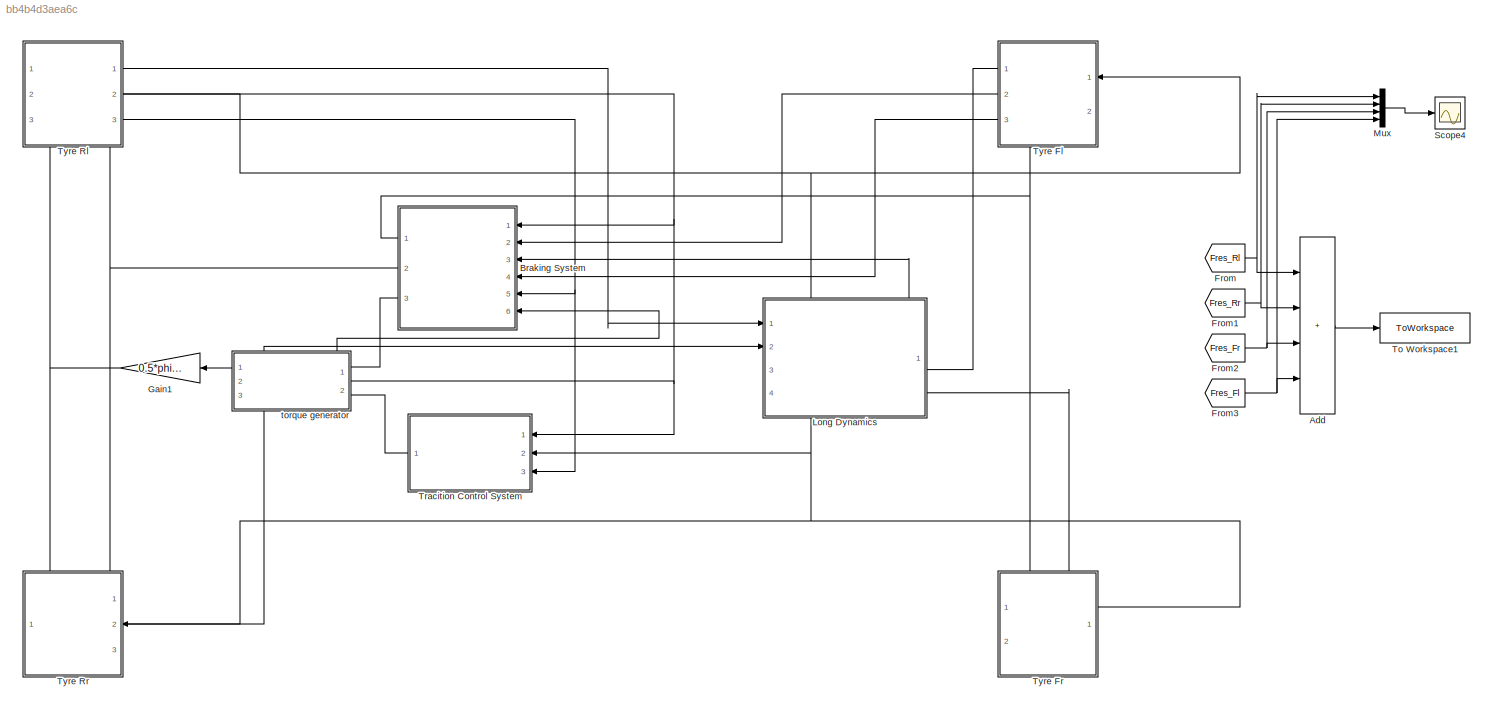
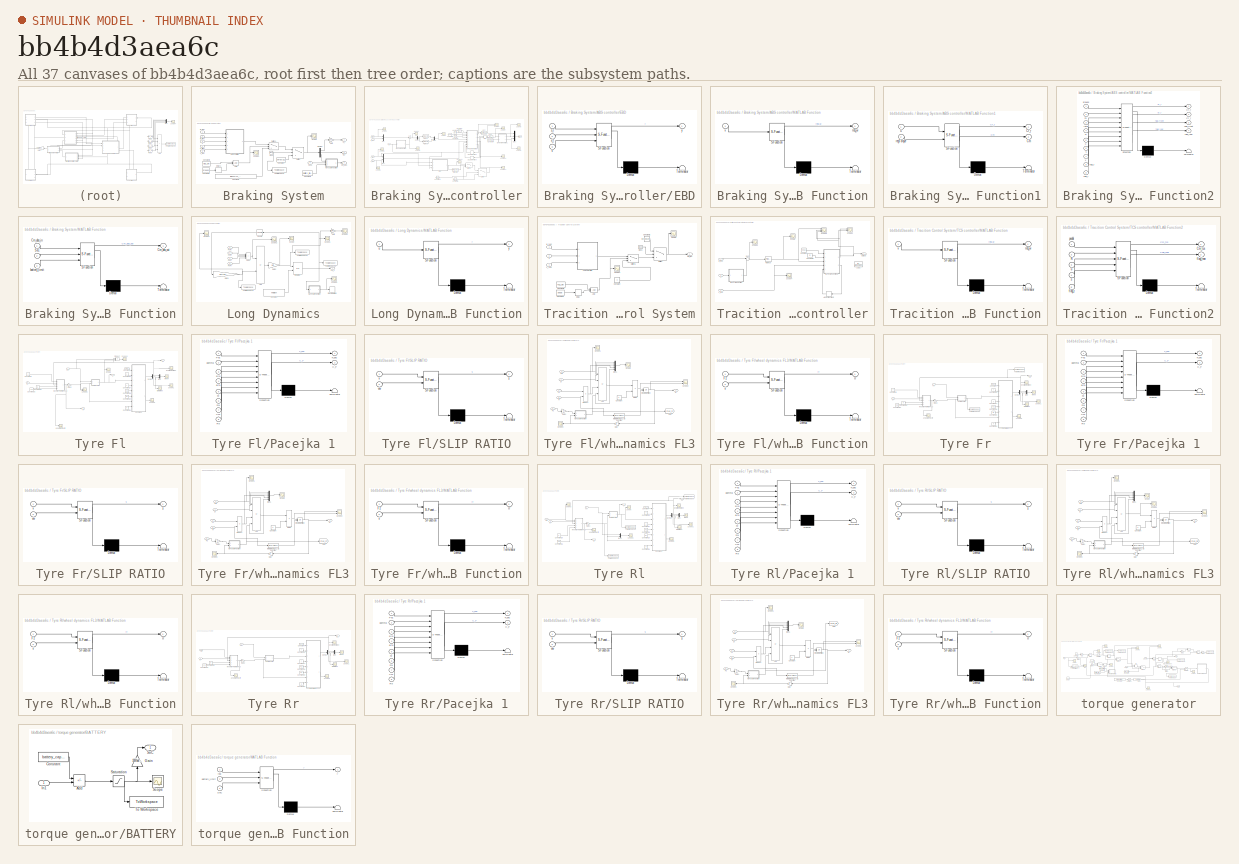
[diagram: thumbnail index - all 37 canvases of the model, root first then tree order]
MODEL slx_bb4b4d3aea6c
KIND model
CONFIG AbsTol = auto
CONFIG EnableMultiTasking = off
CONFIG FixedStep = 0.001
CONFIG MaxStep = auto
CONFIG MinStep = auto
CONFIG RelTol = 1e-3
CONFIG SampleTimeConstraint = Unconstrained
CONFIG SolverName = ode4
CONFIG StartTime = 0.0
CONFIG StopTime = sim_time
BLOCK [Sum] Add
  IconShape = rectangular
  Inputs = ++++
  Ports = [4, 1]
BLOCK [SubSystem] Braking System
  Ports = [6, 3]
  RequestExecContextInheritance = off
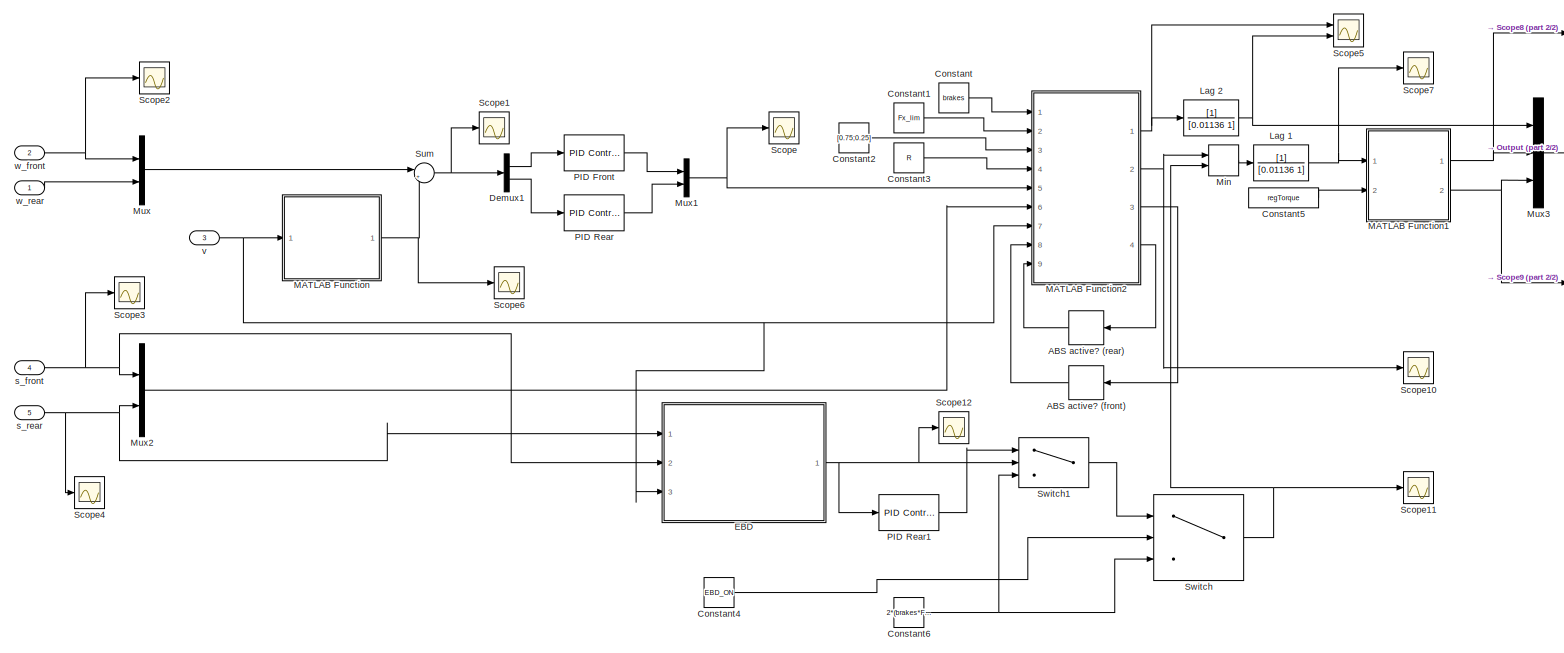
[diagram: Braking System/ABS controller - part 1/2, most of the canvas]
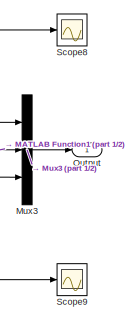
[diagram: Braking System/ABS controller - part 2/2, top right region]
BLOCK [SubSystem] Braking System/ABS controller
  Ports = [5, 1]
  RequestExecContextInheritance = off
BLOCK [TransferFcn] Braking System/ABS controller/ Lag 2
  Denominator = [0.01136 1]
  NameLocation = top
BLOCK [Delay] Braking System/ABS controller/ABS active? (front)
  DelayLength = 1
  InputPortMap = u0
  NameLocation = top
  Ports = [1, 1]
BLOCK [Delay] Braking System/ABS controller/ABS active? (rear)
  DelayLength = 1
  InputPortMap = u0
  NameLocation = top
  Ports = [1, 1]
BLOCK [Constant] Braking System/ABS controller/Constant
  Value = brakes
BLOCK [Constant] Braking System/ABS controller/Constant1
  Value = Fx_lim
BLOCK [Constant] Braking System/ABS controller/Constant2
  Value = [0.75;0.25]
BLOCK [Constant] Braking System/ABS controller/Constant3
  Value = R
BLOCK [Constant] Braking System/ABS controller/Constant4
  Value = EBD_ON
BLOCK [Constant] Braking System/ABS controller/Constant5
  Value = regTorque
BLOCK [Constant] Braking System/ABS controller/Constant6
  Value = 2*(brakes*Fx_lim*0.25*R - regTorque)
BLOCK [Demux] Braking System/ABS controller/Demux1
  Outputs = 2
  Ports = [1, 2]
BLOCK [SubSystem] Braking System/ABS controller/EBD
  ErrorFcn = Stateflow.Translate.translate
  PermitHierarchicalResolution = ExplicitOnly
  Ports = [3, 1]
  RequestExecContextInheritance = off
  SFBlockType = MATLAB Function
  TreatAsAtomicUnit = on
BLOCK [Demux] Braking System/ABS controller/EBD/ Demux 
  Outputs = 1
  Ports = [1, 1]
BLOCK [S-Function] Braking System/ABS controller/EBD/ SFunction 
  EnableBusSupport = on
  FunctionName = sf_sfun
  PortCounts = [3 2]
  Ports = [3, 2]
  SFcnIsStateOwnerBlock = off
  SFunctionDeploymentMode = off
  Tag = Stateflow S-Function 22
BLOCK [Terminator] Braking System/ABS controller/EBD/ Terminator 
BLOCK [Inport] Braking System/ABS controller/EBD/s_f
  Port = 2
BLOCK [Inport] Braking System/ABS controller/EBD/s_r
BLOCK [Inport] Braking System/ABS controller/EBD/v
  Port = 3
BLOCK [Outport] Braking System/ABS controller/EBD/y
BLOCK [TransferFcn] Braking System/ABS controller/Lag 1
  Denominator = [0.01136 1]
  NameLocation = top
BLOCK [SubSystem] Braking System/ABS controller/MATLAB Function
  ErrorFcn = Stateflow.Translate.translate
  PermitHierarchicalResolution = ExplicitOnly
  Ports = [1, 1]
  RequestExecContextInheritance = off
  SFBlockType = MATLAB Function
  TreatAsAtomicUnit = on
BLOCK [Demux] Braking System/ABS controller/MATLAB Function/ Demux 
  Outputs = 1
  Ports = [1, 1]
BLOCK [S-Function] Braking System/ABS controller/MATLAB Function/ SFunction 
  EnableBusSupport = on
  FunctionName = sf_sfun
  PortCounts = [1 2]
  Ports = [1, 2]
  SFcnIsStateOwnerBlock = off
  SFunctionDeploymentMode = off
  Tag = Stateflow S-Function 14
BLOCK [Terminator] Braking System/ABS controller/MATLAB Function/ Terminator 
BLOCK [Outport] Braking System/ABS controller/MATLAB Function/req_w
BLOCK [Inport] Braking System/ABS controller/MATLAB Function/v
BLOCK [SubSystem] Braking System/ABS controller/MATLAB Function1
  ErrorFcn = Stateflow.Translate.translate
  PermitHierarchicalResolution = ExplicitOnly
  Ports = [2, 2]
  RequestExecContextInheritance = off
  SFBlockType = MATLAB Function
  TreatAsAtomicUnit = on
BLOCK [Demux] Braking System/ABS controller/MATLAB Function1/ Demux 
  Outputs = 1
  Ports = [1, 1]
BLOCK [S-Function] Braking System/ABS controller/MATLAB Function1/ SFunction 
  EnableBusSupport = on
  FunctionName = sf_sfun
  PortCounts = [2 3]
  Ports = [2, 3]
  SFcnIsStateOwnerBlock = off
  SFunctionDeploymentMode = off
  Tag = Stateflow S-Function 16
BLOCK [Terminator] Braking System/ABS controller/MATLAB Function1/ Terminator 
BLOCK [Outport] Braking System/ABS controller/MATLAB Function1/Cf_r
BLOCK [Outport] Braking System/ABS controller/MATLAB Function1/Cm
  Port = 2
BLOCK [Inport] Braking System/ABS controller/MATLAB Function1/regTorque
  Port = 2
BLOCK [Inport] Braking System/ABS controller/MATLAB Function1/u
BLOCK [SubSystem] Braking System/ABS controller/MATLAB Function2
  ErrorFcn = Stateflow.Translate.translate
  PermitHierarchicalResolution = ExplicitOnly
  Ports = [9, 4]
  RequestExecContextInheritance = off
  SFBlockType = MATLAB Function
  TreatAsAtomicUnit = on
BLOCK [Demux] Braking System/ABS controller/MATLAB Function2/ Demux 
  Outputs = 1
  Ports = [1, 1]
BLOCK [S-Function] Braking System/ABS controller/MATLAB Function2/ SFunction 
  EnableBusSupport = on
  FunctionName = sf_sfun
  PortCounts = [9 5]
  Ports = [9, 5]
  SFcnIsStateOwnerBlock = off
  SFunctionDeploymentMode = off
  Tag = Stateflow S-Function 15
BLOCK [Terminator] Braking System/ABS controller/MATLAB Function2/ Terminator 
BLOCK [Outport] Braking System/ABS controller/MATLAB Function2/Cf_f
BLOCK [Outport] Braking System/ABS controller/MATLAB Function2/Cf_r
  Port = 2
BLOCK [Inport] Braking System/ABS controller/MATLAB Function2/Fx
  Port = 2
BLOCK [Inport] Braking System/ABS controller/MATLAB Function2/R
  Port = 4
BLOCK [Inport] Braking System/ABS controller/MATLAB Function2/brakes
BLOCK [Inport] Braking System/ABS controller/MATLAB Function2/flag_f
  Port = 8
BLOCK [Outport] Braking System/ABS controller/MATLAB Function2/flag_front
  Port = 3
BLOCK [Inport] Braking System/ABS controller/MATLAB Function2/flag_r
  Port = 9
BLOCK [Outport] Braking System/ABS controller/MATLAB Function2/flag_rear
  Port = 4
BLOCK [Inport] Braking System/ABS controller/MATLAB Function2/ratio
  Port = 3
BLOCK [Inport] Braking System/ABS controller/MATLAB Function2/s
  Port = 6
BLOCK [Inport] Braking System/ABS controller/MATLAB Function2/u
  Port = 5
BLOCK [Inport] Braking System/ABS controller/MATLAB Function2/v
  Port = 7
BLOCK [MinMax] Braking System/ABS controller/Min
  Inputs = 2
  Ports = [2, 1]
BLOCK [Mux] Braking System/ABS controller/Mux
  DisplayOption = bar
  Inputs = 2
  Ports = [2, 1]
BLOCK [Mux] Braking System/ABS controller/Mux1
  DisplayOption = bar
  Inputs = 2
  Ports = [2, 1]
BLOCK [Mux] Braking System/ABS controller/Mux2
  DisplayOption = bar
  Inputs = 2
  Ports = [2, 1]
BLOCK [Mux] Braking System/ABS controller/Mux3
  DisplayOption = bar
  Inputs = 3
  Ports = [3, 1]
BLOCK [Outport] Braking System/ABS controller/Output
BLOCK [Reference] Braking System/ABS controller/PID Front  REF=pid_lib/PID Controller
  NameLocation = top
  Ports = [1, 1]
  SourceBlock = pid_lib/PID Controller
  SourceProductBaseCode = SL
  SourceType = PID 1dof
BLOCK [Reference] Braking System/ABS controller/PID Rear  REF=pid_lib/PID Controller
  NameLocation = top
  Ports = [1, 1]
  SourceBlock = pid_lib/PID Controller
  SourceProductBaseCode = SL
  SourceType = PID 1dof
BLOCK [Reference] Braking System/ABS controller/PID Rear1  REF=pid_lib/PID Controller
  NameLocation = top
  Ports = [1, 1]
  SourceBlock = pid_lib/PID Controller
  SourceProductBaseCode = SL
  SourceType = PID 1dof
BLOCK [Scope] Braking System/ABS controller/Scope
  Floating = off
  NumInputPorts = 1
  Ports = [1]
  ScopeSpecificationString = Simulink.scopes.TimeScopeBlockCfg('CurrentConfiguration', extmgr.ConfigurationSet(extmgr.Configuration('Core','General UI',true),extmgr.Configuration('Core','Source UI',true),extmgr.Configuration('Sources','WiredSimulink',true,'DataLoggingVariableName','ScopeData1'),extmgr.Configuration('Visuals','Time Domain',true,'SerializedDisplays',{struct('MinYLimReal','-166.41433','MaxYLimReal','1497.729','Y...<+1503ch>
BLOCK [Scope] Braking System/ABS controller/Scope1
  Floating = off
  NumInputPorts = 1
  Ports = [1]
  ScopeSpecificationString = Simulink.scopes.TimeScopeBlockCfg('CurrentConfiguration', extmgr.ConfigurationSet(extmgr.Configuration('Core','General UI',true),extmgr.Configuration('Core','Source UI',true),extmgr.Configuration('Sources','WiredSimulink',true,'DataLoggingVariableName','ScopeData4'),extmgr.Configuration('Visuals','Time Domain',true,'SerializedDisplays',{struct('MinYLimReal','-79.86769','MaxYLimReal','29.11014','YL...<+1498ch>
BLOCK [Scope] Braking System/ABS controller/Scope10
  Floating = off
  NumInputPorts = 1
  Ports = [1]
  ScopeSpecificationString = Simulink.scopes.TimeScopeBlockCfg('CurrentConfiguration', extmgr.ConfigurationSet(extmgr.Configuration('Core','General UI',true),extmgr.Configuration('Core','Source UI',true),extmgr.Configuration('Sources','WiredSimulink',true,'DataLoggingVariableName','ScopeData2'),extmgr.Configuration('Visuals','Time Domain',true,'SerializedDisplays',{struct('MinYLimReal','3740.192','MaxYLimReal','5740.192','YLa...<+1459ch>
BLOCK [Scope] Braking System/ABS controller/Scope11
  Floating = off
  NumInputPorts = 1
  Ports = [1]
  ScopeSpecificationString = Simulink.scopes.TimeScopeBlockCfg('CurrentConfiguration', extmgr.ConfigurationSet(extmgr.Configuration('Core','General UI',true),extmgr.Configuration('Core','Source UI',true),extmgr.Configuration('Sources','WiredSimulink',true,'DataLoggingVariableName','ScopeData3'),extmgr.Configuration('Visuals','Time Domain',true,'SerializedDisplays',{struct('MinYLimReal','-1189.61359','MaxYLimReal','10797.15984...<+1462ch>
BLOCK [Scope] Braking System/ABS controller/Scope12
  Floating = off
  NumInputPorts = 1
  Ports = [1]
  ScopeSpecificationString = Simulink.scopes.TimeScopeBlockCfg('CurrentConfiguration', extmgr.ConfigurationSet(extmgr.Configuration('Core','General UI',true),extmgr.Configuration('Core','Source UI',true),extmgr.Configuration('Sources','WiredSimulink',true,'DataLoggingVariableName','ScopeData1'),extmgr.Configuration('Visuals','Time Domain',true,'SerializedDisplays',{struct('MinYLimReal','-6.85409','MaxYLimReal','132.3563','YLa...<+1445ch>
BLOCK [Scope] Braking System/ABS controller/Scope2
  Floating = off
  NumInputPorts = 1
  Ports = [1]
  ScopeSpecificationString = Simulink.scopes.TimeScopeBlockCfg('CurrentConfiguration', extmgr.ConfigurationSet(extmgr.Configuration('Core','General UI',true),extmgr.Configuration('Core','Source UI',true),extmgr.Configuration('Sources','WiredSimulink',true,'DataLoggingVariableName','ScopeData5'),extmgr.Configuration('Visuals','Time Domain',true,'SerializedDisplays',{struct('MinYLimReal','-20.72303','MaxYLimReal','186.50725','Y...<+1434ch>
BLOCK [Scope] Braking System/ABS controller/Scope3
  Floating = off
  NumInputPorts = 1
  Ports = [1]
  ScopeSpecificationString = Simulink.scopes.TimeScopeBlockCfg('CurrentConfiguration', extmgr.ConfigurationSet(extmgr.Configuration('Core','General UI',true),extmgr.Configuration('Core','Source UI',true),extmgr.Configuration('Sources','WiredSimulink',true,'DataLoggingVariableName','ScopeData6'),extmgr.Configuration('Visuals','Time Domain',true,'SerializedDisplays',{struct('MinYLimReal','-1.14665','MaxYLimReal','0.31988','YLab...<+1410ch>
BLOCK [Scope] Braking System/ABS controller/Scope4
  Floating = off
  NumInputPorts = 1
  Ports = [1]
  ScopeSpecificationString = Simulink.scopes.TimeScopeBlockCfg('CurrentConfiguration', extmgr.ConfigurationSet(extmgr.Configuration('Core','General UI',true),extmgr.Configuration('Core','Source UI',true),extmgr.Configuration('Sources','WiredSimulink',true,'DataLoggingVariableName','ScopeData7'),extmgr.Configuration('Visuals','Time Domain',true,'SerializedDisplays',{struct('MinYLimReal','-16.62651','MaxYLimReal','139.63859','Y...<+1400ch>
BLOCK [Scope] Braking System/ABS controller/Scope5
  Floating = off
  NumInputPorts = 2
  Ports = [2]
  ScopeSpecificationString = Simulink.scopes.TimeScopeBlockCfg('CurrentConfiguration', extmgr.ConfigurationSet(extmgr.Configuration('Core','General UI',true),extmgr.Configuration('Core','Source UI',true),extmgr.Configuration('Sources','WiredSimulink',true,'DataLoggingVariableName','ScopeData2'),extmgr.Configuration('Visuals','Time Domain',true,'SerializedDisplays',{struct('MinYLimReal','3517.55339','MaxYLimReal','3570.41065',...<+1526ch>
BLOCK [Scope] Braking System/ABS controller/Scope6
  Floating = off
  NumInputPorts = 1
  Ports = [1]
  ScopeSpecificationString = Simulink.scopes.TimeScopeBlockCfg('CurrentConfiguration', extmgr.ConfigurationSet(extmgr.Configuration('Core','General UI',true),extmgr.Configuration('Core','Source UI',true),extmgr.Configuration('Sources','WiredSimulink',true,'DataLoggingVariableName','ScopeData3'),extmgr.Configuration('Visuals','Time Domain',true,'SerializedDisplays',{struct('MinYLimReal','-8.26361','MaxYLimReal','75.47711','YLa...<+1409ch>
BLOCK [Scope] Braking System/ABS controller/Scope7
  Floating = off
  NumInputPorts = 1
  Ports = [1]
  ScopeSpecificationString = Simulink.scopes.TimeScopeBlockCfg('CurrentConfiguration', extmgr.ConfigurationSet(extmgr.Configuration('Core','General UI',true),extmgr.Configuration('Core','Source UI',true),extmgr.Configuration('Sources','WiredSimulink',true,'DataLoggingVariableName','ScopeData2'),extmgr.Configuration('Visuals','Time Domain',true,'SerializedDisplays',{struct('MinYLimReal','-148.131','MaxYLimReal','1333.179','YLa...<+1440ch>
BLOCK [Scope] Braking System/ABS controller/Scope8
  Floating = off
  NumInputPorts = 1
  Ports = [1]
  ScopeSpecificationString = Simulink.scopes.TimeScopeBlockCfg('CurrentConfiguration', extmgr.ConfigurationSet(extmgr.Configuration('Core','General UI',true),extmgr.Configuration('Core','Source UI',true),extmgr.Configuration('Sources','WiredSimulink',true,'DataLoggingVariableName','ScopeData3'),extmgr.Configuration('Visuals','Time Domain',true,'SerializedDisplays',{struct('MinYLimReal','-292.57142','MaxYLimReal','2633.1428','...<+1447ch>
BLOCK [Scope] Braking System/ABS controller/Scope9
  Floating = off
  NumInputPorts = 1
  Ports = [1]
  ScopeSpecificationString = Simulink.scopes.TimeScopeBlockCfg('CurrentConfiguration', extmgr.ConfigurationSet(extmgr.Configuration('Core','General UI',true),extmgr.Configuration('Core','Source UI',true),extmgr.Configuration('Sources','WiredSimulink',true,'DataLoggingVariableName','ScopeData4'),extmgr.Configuration('Visuals','Time Domain',true,'SerializedDisplays',{struct('MinYLimReal','-331.32137','MaxYLimReal','36.81349','Y...<+1463ch>
BLOCK [Sum] Braking System/ABS controller/Sum
  Inputs = |+-
  Ports = [2, 1]
BLOCK [Switch] Braking System/ABS controller/Switch
  Criteria = u2 > Threshold
  InputSameDT = off
  SaturateOnIntegerOverflow = off
BLOCK [Switch] Braking System/ABS controller/Switch1
  Criteria = u2 > Threshold
  InputSameDT = off
  SaturateOnIntegerOverflow = off
BLOCK [Inport] Braking System/ABS controller/s_front
  Port = 4
BLOCK [Inport] Braking System/ABS controller/s_rear
  Port = 5
BLOCK [Inport] Braking System/ABS controller/v
  Port = 3
BLOCK [Inport] Braking System/ABS controller/w_front
  Port = 2
BLOCK [Inport] Braking System/ABS controller/w_rear
BLOCK [Logic] Braking System/AND
  AllPortsSameDT = off
  IconShape = distinctive
  OutDataTypeStr = boolean
  Ports = [2, 1]
BLOCK [Outport] Braking System/Cf_f
BLOCK [Outport] Braking System/Cf_r
  Port = 2
BLOCK [Clock] Braking System/Clock
BLOCK [Outport] Braking System/Cm_abs
  Port = 3
BLOCK [Constant] Braking System/Constant
  Value = zeros(3,1)
BLOCK [Constant] Braking System/Constant1
  Value = [brakes*Fx_lim*0.75*R brakes*Fx_lim*0.25*R 0]
BLOCK [Constant] Braking System/Constant2
  Value = ABS_ON
BLOCK [Constant] Braking System/Constant3
  Value = brakes
BLOCK [Constant] Braking System/Constant4
  Value = battery_limit
BLOCK [Delay] Braking System/Delay1
  DelayLength = 20
  InputPortMap = u0
  Ports = [1, 1]
BLOCK [Demux] Braking System/Demux
  Outputs = 3
  Ports = [1, 3]
BLOCK [Gain] Braking System/Gain
  Gain = 0.5
BLOCK [SubSystem] Braking System/MATLAB Function
  ErrorFcn = Stateflow.Translate.translate
  PermitHierarchicalResolution = ExplicitOnly
  Ports = [3, 1]
  RequestExecContextInheritance = off
  SFBlockType = MATLAB Function
  TreatAsAtomicUnit = on
BLOCK [Demux] Braking System/MATLAB Function/ Demux 
  Outputs = 1
  Ports = [1, 1]
BLOCK [S-Function] Braking System/MATLAB Function/ SFunction 
  EnableBusSupport = on
  FunctionName = sf_sfun
  PortCounts = [3 2]
  Ports = [3, 2]
  SFcnIsStateOwnerBlock = off
  SFunctionDeploymentMode = off
  Tag = Stateflow S-Function 20
BLOCK [Terminator] Braking System/MATLAB Function/ Terminator 
BLOCK [Inport] Braking System/MATLAB Function/Cm_abs_in
BLOCK [Outport] Braking System/MATLAB Function/Cm_abs_out
BLOCK [Inport] Braking System/MATLAB Function/SoC
  Port = 2
BLOCK [Inport] Braking System/MATLAB Function/battery_limit
  Port = 3
BLOCK [Scope] Braking System/Scope
  Floating = off
  NumInputPorts = 1
  Ports = [1]
  ScopeSpecificationString = Simulink.scopes.TimeScopeBlockCfg('CurrentConfiguration', extmgr.ConfigurationSet(extmgr.Configuration('Core','General UI',true,'FigureColor',[0 0 0]),extmgr.Configuration('Core','Source UI',true),extmgr.Configuration('Sources','WiredSimulink',true,'DataLoggingVariableName','ScopeData2'),extmgr.Configuration('Visuals','Time Domain',true,'SerializedDisplays',{struct('MinYLimReal','-888.786','MaxYLi...<+1472ch>
BLOCK [Scope] Braking System/Scope1
  Floating = off
  NumInputPorts = 1
  Ports = [1]
  ScopeSpecificationString = Simulink.scopes.TimeScopeBlockCfg('CurrentConfiguration', extmgr.ConfigurationSet(extmgr.Configuration('Core','General UI',true),extmgr.Configuration('Core','Source UI',true),extmgr.Configuration('Sources','WiredSimulink',true,'DataLoggingVariableName','ScopeData1'),extmgr.Configuration('Visuals','Time Domain',true,'SerializedDisplays',{struct('MinYLimReal','-1.00000','MaxYLimReal','1.00000','YLab...<+1503ch>
BLOCK [Inport] Braking System/SoC1
  Port = 6
BLOCK [Switch] Braking System/Switch
  Criteria = u2 > Threshold
  InputSameDT = off
  SaturateOnIntegerOverflow = off
  Threshold = brake_start
BLOCK [Switch] Braking System/Switch1
  Criteria = u2 > Threshold
  InputSameDT = off
  SaturateOnIntegerOverflow = off
BLOCK [ToWorkspace] Braking System/To Workspace
  FixptAsFi = on
  MaxDataPoints = inf
  Ports = [1]
  SampleTime = -1
  VariableName = t
BLOCK [Inport] Braking System/s_front
  Port = 4
BLOCK [Inport] Braking System/s_rear
  Port = 5
BLOCK [Inport] Braking System/v
  Port = 3
BLOCK [Inport] Braking System/w_front
  Port = 2
BLOCK [Inport] Braking System/w_rear
BLOCK [From] From
  GotoTag = Fres_Rl
  TagVisibility = global
BLOCK [From] From1
  GotoTag = Fres_Rr
  TagVisibility = global
BLOCK [From] From2
  GotoTag = Fres_Fr
  TagVisibility = global
BLOCK [From] From3
  GotoTag = Fres_Fl
  TagVisibility = global
BLOCK [Gain] Gain1
  Gain = 0.5*phi*Gr
BLOCK [SubSystem] Long Dynamics
  PortSchema = {"entries":[{"content":{"sides":[{"content":{"connectorIds":["In1","Out1","In2"]},"type":"ConnectorPlacement.EquallySpacedRectSide","uuid":"f4bfbc8e-e09b-460b-b847-06647d23fd6c"},{"content":{"connectorIds":["In3","In4"],"side":"RIGHT"},"type":"ConnectorPlacement.EquallySpacedRectSide","uuid":"843119d8-e9e9-4b71-b659-44edd5e92d7e"},{"content":{"connectorIds":[],"side":"TOP"},"type":"ConnectorPlacem...<+258ch>
  Ports = [4, 1]
  RequestExecContextInheritance = off
BLOCK [Sum] Long Dynamics/Add
  IconShape = rectangular
  Inputs = +-
  Ports = [2, 1]
BLOCK [Sum] Long Dynamics/Add1
  IconShape = rectangular
  Inputs = ++++
  Ports = [4, 1]
BLOCK [Constant] Long Dynamics/Constant
  Value = velstart
BLOCK [Inport] Long Dynamics/FxFl
  Port = 3
BLOCK [Inport] Long Dynamics/FxFr
  Port = 4
BLOCK [Inport] Long Dynamics/FxRl
BLOCK [Inport] Long Dynamics/FxRr
  Port = 2
BLOCK [Gain] Long Dynamics/Gain
  Gain = m*h/L
BLOCK [Gain] Long Dynamics/Gain1
  Gain = 0.5*rho*Cx*Af
BLOCK [Gain] Long Dynamics/Gain2
  Gain = 1/m
BLOCK [Integrator] Long Dynamics/Integrator
  InitialConditionSource = external
  LimitOutput = on
  LowerSaturationLimit = 0
  Ports = [2, 1]
BLOCK [SubSystem] Long Dynamics/MATLAB Function
  ErrorFcn = Stateflow.Translate.translate
  PermitHierarchicalResolution = ExplicitOnly
  Ports = [1, 1]
  RequestExecContextInheritance = off
  SFBlockType = MATLAB Function
  TreatAsAtomicUnit = on
BLOCK [Demux] Long Dynamics/MATLAB Function/ Demux 
  Outputs = 1
  Ports = [1, 1]
BLOCK [S-Function] Long Dynamics/MATLAB Function/ SFunction 
  EnableBusSupport = on
  FunctionName = sf_sfun
  PortCounts = [1 2]
  Ports = [1, 2]
  SFcnIsStateOwnerBlock = off
  SFunctionDeploymentMode = off
  Tag = Stateflow S-Function 13
BLOCK [Terminator] Long Dynamics/MATLAB Function/ Terminator 
BLOCK [Inport] Long Dynamics/MATLAB Function/u
BLOCK [Outport] Long Dynamics/MATLAB Function/y
BLOCK [Scope] Long Dynamics/Scope
  Floating = off
  NumInputPorts = 1
  Ports = [1]
  ScopeSpecificationString = Simulink.scopes.TimeScopeBlockCfg('CurrentConfiguration', extmgr.ConfigurationSet(extmgr.Configuration('Core','General UI',true),extmgr.Configuration('Core','Source UI',true),extmgr.Configuration('Sources','WiredSimulink',true),extmgr.Configuration('Visuals','Time Domain',true,'SerializedDisplays',{struct('MinYLimReal','-1.40316','MaxYLimReal','11.31553','YLabelReal','','MinYLimMag','0.00000','Max...<+1400ch>
BLOCK [Scope] Long Dynamics/Scope1
  Floating = off
  NumInputPorts = 1
  Ports = [1]
  ScopeSpecificationString = Simulink.scopes.TimeScopeBlockCfg('CurrentConfiguration', extmgr.ConfigurationSet(extmgr.Configuration('Core','General UI',true),extmgr.Configuration('Core','Source UI',true),extmgr.Configuration('Sources','WiredSimulink',true,'DataLoggingVariableName','ScopeData6'),extmgr.Configuration('Visuals','Time Domain',true,'SerializedDisplays',{struct('MinYLimReal','-5.00928','MaxYLimReal','50.01842','YLa...<+1444ch>
BLOCK [Scope] Long Dynamics/Scope2
  Floating = off
  NumInputPorts = 1
  Ports = [1]
  ScopeSpecificationString = Simulink.scopes.TimeScopeBlockCfg('CurrentConfiguration', extmgr.ConfigurationSet(extmgr.Configuration('Core','General UI',true),extmgr.Configuration('Core','Source UI',true),extmgr.Configuration('Sources','WiredSimulink',true,'DataLoggingVariableName','ScopeData3'),extmgr.Configuration('Visuals','Time Domain',true,'SerializedDisplays',{struct('MinYLimReal','-18686.28921','MaxYLimReal','8851.96449...<+1470ch>
BLOCK [Scope] Long Dynamics/Scope3
  Floating = off
  NumInputPorts = 1
  Ports = [1]
  ScopeSpecificationString = Simulink.scopes.TimeScopeBlockCfg('CurrentConfiguration', extmgr.ConfigurationSet(extmgr.Configuration('Core','General UI',true),extmgr.Configuration('Core','Source UI',true),extmgr.Configuration('Sources','WiredSimulink',true,'DataLoggingVariableName','ScopeData1'),extmgr.Configuration('Visuals','Time Domain',true,'SerializedDisplays',{struct('MinYLimReal','-1.00000','MaxYLimReal','1.00000','YLab...<+1426ch>
BLOCK [Scope] Long Dynamics/Scope4
  Floating = off
  NumInputPorts = 1
  Ports = [1]
  ScopeSpecificationString = Simulink.scopes.TimeScopeBlockCfg('CurrentConfiguration', extmgr.ConfigurationSet(extmgr.Configuration('Core','General UI',true),extmgr.Configuration('Core','Source UI',true),extmgr.Configuration('Sources','WiredSimulink',true,'DataLoggingVariableName','ScopeData1'),extmgr.Configuration('Visuals','Time Domain',true,'SerializedDisplays',{struct('MinYLimReal','-64.40313','MaxYLimReal','579.62821','Y...<+1448ch>
BLOCK [Scope] Long Dynamics/Scope5
  Floating = off
  NumInputPorts = 1
  Ports = [1]
  ScopeSpecificationString = Simulink.scopes.TimeScopeBlockCfg('CurrentConfiguration', extmgr.ConfigurationSet(extmgr.Configuration('Core','General UI',true),extmgr.Configuration('Core','Source UI',true),extmgr.Configuration('Sources','WiredSimulink',true,'DataLoggingVariableName','ScopeData1'),extmgr.Configuration('Visuals','Time Domain',true,'SerializedDisplays',{struct('MinYLimReal','-4687.18969','MaxYLimReal','2841.88291'...<+1410ch>
BLOCK [Math] Long Dynamics/Square
  NameLocation = top
  Operator = square
  Ports = [1, 1]
BLOCK [Stop] Long Dynamics/Stop Simulation
BLOCK [ToWorkspace] Long Dynamics/To Workspace1
  FixptAsFi = on
  MaxDataPoints = inf
  Ports = [1]
  SampleTime = -1
  VariableName = aerodynamic_drag
BLOCK [ToWorkspace] Long Dynamics/To Workspace2
  FixptAsFi = on
  MaxDataPoints = inf
  Ports = [1]
  SampleTime = -1
  VariableName = a
BLOCK [ToWorkspace] Long Dynamics/To Workspace3
  FixptAsFi = on
  MaxDataPoints = inf
  Ports = [1]
  SampleTime = -1
  VariableName = vel
BLOCK [Outport] Long Dynamics/vel_x
BLOCK [Mux] Mux
  DisplayOption = bar
  Ports = [4, 1]
BLOCK [Scope] Scope4
  Floating = off
  NumInputPorts = 1
  Ports = [1]
  ScopeSpecificationString = Simulink.scopes.TimeScopeBlockCfg('CurrentConfiguration', extmgr.ConfigurationSet(extmgr.Configuration('Core','General UI',true),extmgr.Configuration('Core','Source UI',true),extmgr.Configuration('Sources','WiredSimulink',true,'DataLoggingVariableName','ScopeData4'),extmgr.Configuration('Visuals','Time Domain',true,'SerializedDisplays',{struct('MinYLimReal','9.68125','MaxYLimReal','52.37258','YLab...<+1430ch>
BLOCK [ToWorkspace] To Workspace1
  FixptAsFi = on
  MaxDataPoints = inf
  Ports = [1]
  SampleTime = -1
  VariableName = rolling_resistance
BLOCK [SubSystem] Tracition Control System
  Ports = [3, 1]
  RequestExecContextInheritance = off
BLOCK [Logic] Tracition Control System/AND
  AllPortsSameDT = off
  IconShape = distinctive
  OutDataTypeStr = boolean
  Ports = [2, 1]
BLOCK [Clock] Tracition Control System/Clock
BLOCK [Outport] Tracition Control System/Cm_tcs
  NameLocation = top
BLOCK [Constant] Tracition Control System/Constant
  Value = 0
BLOCK [Constant] Tracition Control System/Constant2
  Value = regTorque*0.5*phi*Gr
BLOCK [Constant] Tracition Control System/Constant3
  Value = TCS_ON
BLOCK [Constant] Tracition Control System/Constant4
  Value = pedal
BLOCK [Delay] Tracition Control System/Delay
  DelayLength = 20
  InputPortMap = u0
  Ports = [1, 1]
BLOCK [Scope] Tracition Control System/Scope
  Floating = off
  NumInputPorts = 1
  Ports = [1]
  ScopeSpecificationString = Simulink.scopes.TimeScopeBlockCfg('CurrentConfiguration', extmgr.ConfigurationSet(extmgr.Configuration('Core','General UI',true),extmgr.Configuration('Core','Source UI',true),extmgr.Configuration('Sources','WiredSimulink',true,'DataLoggingVariableName','ScopeData2'),extmgr.Configuration('Visuals','Time Domain',true,'SerializedDisplays',{struct('MinYLimReal','-38.75','MaxYLimReal','348.75','YLabelR...<+1496ch>
BLOCK [Scope] Tracition Control System/Scope1
  Floating = off
  NumInputPorts = 1
  Ports = [1]
  ScopeSpecificationString = Simulink.scopes.TimeScopeBlockCfg('CurrentConfiguration', extmgr.ConfigurationSet(extmgr.Configuration('Core','General UI',true),extmgr.Configuration('Core','Source UI',true),extmgr.Configuration('Sources','WiredSimulink',true,'DataLoggingVariableName','ScopeData1'),extmgr.Configuration('Visuals','Time Domain',true,'SerializedDisplays',{struct('MinYLimReal','0.9','MaxYLimReal','1.1','YLabelReal','...<+1388ch>
BLOCK [Switch] Tracition Control System/Switch
  Criteria = u2 > Threshold
  InputSameDT = off
  SaturateOnIntegerOverflow = off
  Threshold = sim_time
BLOCK [Switch] Tracition Control System/Switch1
  Criteria = u2 > Threshold
  InputSameDT = off
  SaturateOnIntegerOverflow = off
BLOCK [SubSystem] Tracition Control System/TCS controller
  Ports = [3, 1]
  RequestExecContextInheritance = off
BLOCK [Delay] Tracition Control System/TCS controller/ABS active? (rear)
  DelayLength = 1
  InputPortMap = u0
  NameLocation = top
  Ports = [1, 1]
BLOCK [Constant] Tracition Control System/TCS controller/Constant
  Value = pedal
BLOCK [Constant] Tracition Control System/TCS controller/Constant3
  Value = R
BLOCK [TransferFcn] Tracition Control System/TCS controller/Lag 1
  Denominator = [0.01136 1]
  NameLocation = top
BLOCK [SubSystem] Tracition Control System/TCS controller/MATLAB Function
  ErrorFcn = Stateflow.Translate.translate
  PermitHierarchicalResolution = ExplicitOnly
  Ports = [1, 1]
  RequestExecContextInheritance = off
  SFBlockType = MATLAB Function
  TreatAsAtomicUnit = on
BLOCK [Demux] Tracition Control System/TCS controller/MATLAB Function/ Demux 
  Outputs = 1
  Ports = [1, 1]
BLOCK [S-Function] Tracition Control System/TCS controller/MATLAB Function/ SFunction 
  EnableBusSupport = on
  FunctionName = sf_sfun
  PortCounts = [1 2]
  Ports = [1, 2]
  SFcnIsStateOwnerBlock = off
  SFunctionDeploymentMode = off
  Tag = Stateflow S-Function 17
BLOCK [Terminator] Tracition Control System/TCS controller/MATLAB Function/ Terminator 
BLOCK [Outport] Tracition Control System/TCS controller/MATLAB Function/req_w
BLOCK [Inport] Tracition Control System/TCS controller/MATLAB Function/v
BLOCK [SubSystem] Tracition Control System/TCS controller/MATLAB Function2
  ErrorFcn = Stateflow.Translate.translate
  PermitHierarchicalResolution = ExplicitOnly
  Ports = [5, 2]
  RequestExecContextInheritance = off
  SFBlockType = MATLAB Function
  TreatAsAtomicUnit = on
BLOCK [Demux] Tracition Control System/TCS controller/MATLAB Function2/ Demux 
  Outputs = 1
  Ports = [1, 1]
BLOCK [S-Function] Tracition Control System/TCS controller/MATLAB Function2/ SFunction 
  EnableBusSupport = on
  FunctionName = sf_sfun
  PortCounts = [5 3]
  Ports = [5, 3]
  SFcnIsStateOwnerBlock = off
  SFunctionDeploymentMode = off
  Tag = Stateflow S-Function 19
BLOCK [Terminator] Tracition Control System/TCS controller/MATLAB Function2/ Terminator 
BLOCK [Outport] Tracition Control System/TCS controller/MATLAB Function2/Cm_tcs
BLOCK [Inport] Tracition Control System/TCS controller/MATLAB Function2/R
  Port = 2
BLOCK [Inport] Tracition Control System/TCS controller/MATLAB Function2/flag_r
  Port = 5
BLOCK [Outport] Tracition Control System/TCS controller/MATLAB Function2/flag_rear
  Port = 2
BLOCK [Inport] Tracition Control System/TCS controller/MATLAB Function2/pedal
BLOCK [Inport] Tracition Control System/TCS controller/MATLAB Function2/s
  Port = 4
BLOCK [Inport] Tracition Control System/TCS controller/MATLAB Function2/u
  Port = 3
BLOCK [Outport] Tracition Control System/TCS controller/Output
BLOCK [Reference] Tracition Control System/TCS controller/PID Rear  REF=pid_lib/PID Controller
  NameLocation = top
  Ports = [1, 1]
  SourceBlock = pid_lib/PID Controller
  SourceProductBaseCode = SL
  SourceType = PID 1dof
BLOCK [Scope] Tracition Control System/TCS controller/Scope
  Floating = off
  NumInputPorts = 1
  Ports = [1]
  ScopeSpecificationString = Simulink.scopes.TimeScopeBlockCfg('CurrentConfiguration', extmgr.ConfigurationSet(extmgr.Configuration('Core','General UI',true),extmgr.Configuration('Core','Source UI',true),extmgr.Configuration('Sources','WiredSimulink',true,'DataLoggingVariableName','ScopeData1'),extmgr.Configuration('Visuals','Time Domain',true,'SerializedDisplays',{struct('MinYLimReal','-1.00000','MaxYLimReal','1.00000','YLab...<+1438ch>
BLOCK [Scope] Tracition Control System/TCS controller/Scope1
  Floating = off
  NumInputPorts = 1
  Ports = [1]
  ScopeSpecificationString = Simulink.scopes.TimeScopeBlockCfg('CurrentConfiguration', extmgr.ConfigurationSet(extmgr.Configuration('Core','General UI',true),extmgr.Configuration('Core','Source UI',true),extmgr.Configuration('Sources','WiredSimulink',true,'DataLoggingVariableName','ScopeData4'),extmgr.Configuration('Visuals','Time Domain',true,'SerializedDisplays',{struct('MinYLimReal','-23.36615','MaxYLimReal','91.89168','YL...<+1484ch>
BLOCK [Scope] Tracition Control System/TCS controller/Scope2
  Floating = off
  NumInputPorts = 2
  Ports = [2]
  ScopeSpecificationString = Simulink.scopes.TimeScopeBlockCfg('CurrentConfiguration', extmgr.ConfigurationSet(extmgr.Configuration('Core','General UI',true),extmgr.Configuration('Core','Source UI',true),extmgr.Configuration('Sources','WiredSimulink',true,'DataLoggingVariableName','ScopeData1'),extmgr.Configuration('Visuals','Time Domain',true,'SerializedDisplays',{struct('MinYLimReal','-38.75','MaxYLimReal','348.75','YLabelR...<+1444ch>
BLOCK [Scope] Tracition Control System/TCS controller/Scope4
  Floating = off
  NumInputPorts = 1
  Ports = [1]
  ScopeSpecificationString = Simulink.scopes.TimeScopeBlockCfg('CurrentConfiguration', extmgr.ConfigurationSet(extmgr.Configuration('Core','General UI',true),extmgr.Configuration('Core','Source UI',true),extmgr.Configuration('Sources','WiredSimulink',true,'DataLoggingVariableName','ScopeData7'),extmgr.Configuration('Visuals','Time Domain',true,'SerializedDisplays',{struct('MinYLimReal','-0.13584','MaxYLimReal','0.38508','YLab...<+1439ch>
BLOCK [Scope] Tracition Control System/TCS controller/Scope5
  Floating = off
  NumInputPorts = 3
  Ports = [3]
  ScopeSpecificationString = Simulink.scopes.TimeScopeBlockCfg('CurrentConfiguration', extmgr.ConfigurationSet(extmgr.Configuration('Core','General UI',true),extmgr.Configuration('Core','Source UI',true),extmgr.Configuration('Sources','WiredSimulink',true,'DataLoggingVariableName','ScopeData4'),extmgr.Configuration('Visuals','Time Domain',true,'SerializedDisplays',{struct('MinYLimReal','-38.75','MaxYLimReal','348.75','YLabelR...<+1551ch>
BLOCK [Sum] Tracition Control System/TCS controller/Sum
  Inputs = |+-
  Ports = [2, 1]
BLOCK [Inport] Tracition Control System/TCS controller/s_rear
  Port = 3
BLOCK [Inport] Tracition Control System/TCS controller/v
  Port = 2
BLOCK [Inport] Tracition Control System/TCS controller/w_rear
BLOCK [Inport] Tracition Control System/s_rear
  Port = 3
BLOCK [Inport] Tracition Control System/v
  Port = 2
BLOCK [Inport] Tracition Control System/w_rear
BLOCK [SubSystem] Tyre Fl
  PortSchema = {"entries":[{"content":{"sides":[{"content":{"connectorIds":[]},"type":"ConnectorPlacement.EquallySpacedRectSide","uuid":"645908f1-aef9-45cd-aa2f-84533f90cce5"},{"content":{"connectorIds":["Out1","Out2","Out3"],"side":"RIGHT"},"type":"ConnectorPlacement.EquallySpacedRectSide","uuid":"ac122367-fdda-410e-89ff-4b44cb142215"},{"content":{"connectorIds":[],"side":"TOP"},"type":"ConnectorPlacement.Equal...<+404ch>
  Ports = [2, 3]
  RequestExecContextInheritance = off
BLOCK [Inport] Tyre Fl/Cf
  Port = 2
BLOCK [Constant] Tyre Fl/Constant
  Value = Pacn
BLOCK [Constant] Tyre Fl/Constant1
  Value = 0
BLOCK [Constant] Tyre Fl/Constant10
  Value = 0
BLOCK [Constant] Tyre Fl/Constant15
  Value = R
BLOCK [Constant] Tyre Fl/Constant16
  Value = Fz/2
BLOCK [Constant] Tyre Fl/Constant17
  Value = 0
BLOCK [Constant] Tyre Fl/Constant18
  Value = Fz/2
BLOCK [Constant] Tyre Fl/Constant19
  Value = mu
BLOCK [Constant] Tyre Fl/Constant20
  Value = R
BLOCK [Demux] Tyre Fl/Demux
  Outputs = 3
  Ports = [1, 3]
BLOCK [Outport] Tyre Fl/Fx
BLOCK [Gain] Tyre Fl/Gain2
  Gain = R
BLOCK [Mux] Tyre Fl/Mux
  DisplayOption = bar
  Inputs = 2
  Ports = [2, 1]
BLOCK [SubSystem] Tyre Fl/Pacejka 1
  ErrorFcn = Stateflow.Translate.translate
  PermitHierarchicalResolution = ExplicitOnly
  Ports = [8, 2]
  RequestExecContextInheritance = off
  SFBlockType = MATLAB Function
  TreatAsAtomicUnit = on
BLOCK [Demux] Tyre Fl/Pacejka 1/ Demux 
  Outputs = 1
  Ports = [1, 1]
BLOCK [S-Function] Tyre Fl/Pacejka 1/ SFunction 
  EnableBusSupport = on
  FunctionName = sf_sfun
  PortCounts = [8 3]
  Ports = [8, 3]
  SFcnIsStateOwnerBlock = off
  SFunctionDeploymentMode = off
  Tag = Stateflow S-Function 7
BLOCK [Terminator] Tyre Fl/Pacejka 1/ Terminator 
BLOCK [Outport] Tyre Fl/Pacejka 1/C_F
  Port = 2
BLOCK [Outport] Tyre Fl/Pacejka 1/F_pac
BLOCK [Inport] Tyre Fl/Pacejka 1/Fz
  Port = 5
BLOCK [Inport] Tyre Fl/Pacejka 1/Pac
BLOCK [Inport] Tyre Fl/Pacejka 1/R0
  Port = 8
BLOCK [Inport] Tyre Fl/Pacejka 1/Vcx
  Port = 7
BLOCK [Inport] Tyre Fl/Pacejka 1/alfa
  Port = 4
BLOCK [Inport] Tyre Fl/Pacejka 1/gamma
  Port = 2
BLOCK [Inport] Tyre Fl/Pacejka 1/mu
  Port = 6
BLOCK [Inport] Tyre Fl/Pacejka 1/slip
  Port = 3
BLOCK [Product] Tyre Fl/Product
  Inputs = 3
  Ports = [3, 1]
BLOCK [SubSystem] Tyre Fl/SLIP RATIO
  ErrorFcn = Stateflow.Translate.translate
  PermitHierarchicalResolution = ExplicitOnly
  Ports = [2, 1]
  RequestExecContextInheritance = off
  SFBlockType = MATLAB Function
  TreatAsAtomicUnit = on
BLOCK [Demux] Tyre Fl/SLIP RATIO/ Demux 
  Outputs = 1
  Ports = [1, 1]
BLOCK [S-Function] Tyre Fl/SLIP RATIO/ SFunction 
  EnableBusSupport = on
  FunctionName = sf_sfun
  PortCounts = [2 2]
  Ports = [2, 2]
  SFcnIsStateOwnerBlock = off
  SFunctionDeploymentMode = off
  Tag = Stateflow S-Function 8
BLOCK [Terminator] Tyre Fl/SLIP RATIO/ Terminator 
BLOCK [Outport] Tyre Fl/SLIP RATIO/s
BLOCK [Inport] Tyre Fl/SLIP RATIO/v
BLOCK [Inport] Tyre Fl/SLIP RATIO/vw
  Port = 2
BLOCK [Scope] Tyre Fl/Scope
  Floating = off
  NumInputPorts = 1
  Ports = [1]
  ScopeSpecificationString = Simulink.scopes.TimeScopeBlockCfg('CurrentConfiguration', extmgr.ConfigurationSet(extmgr.Configuration('Core','General UI',true),extmgr.Configuration('Core','Source UI',true),extmgr.Configuration('Sources','WiredSimulink',true,'DataLoggingVariableName','ScopeData3'),extmgr.Configuration('Visuals','Time Domain',true,'SerializedDisplays',{struct('MinYLimReal','-1.125','MaxYLimReal','0.125','YLabelRe...<+1429ch>
BLOCK [Scope] Tyre Fl/Scope1
  Floating = off
  NumInputPorts = 1
  Ports = [1]
  ScopeSpecificationString = Simulink.scopes.TimeScopeBlockCfg('CurrentConfiguration', extmgr.ConfigurationSet(extmgr.Configuration('Core','General UI',true),extmgr.Configuration('Core','Source UI',true),extmgr.Configuration('Sources','WiredSimulink',true,'DataLoggingVariableName','ScopeData3'),extmgr.Configuration('Visuals','Time Domain',true,'SerializedDisplays',{struct('MinYLimReal','-20.72199','MaxYLimReal','-0.72199','YL...<+1397ch>  <repeated x4 — deduplicated; at blocks: Scope1>
BLOCK [Scope] Tyre Fl/Scope2
  Floating = off
  NumInputPorts = 2
  Ports = [2]
  ScopeSpecificationString = Simulink.scopes.TimeScopeBlockCfg('CurrentConfiguration', extmgr.ConfigurationSet(extmgr.Configuration('Core','General UI',true),extmgr.Configuration('Core','Source UI',true),extmgr.Configuration('Sources','WiredSimulink',true,'DataLoggingVariableName','ScopeData1'),extmgr.Configuration('Visuals','Time Domain',true,'SerializedDisplays',{struct('MinYLimReal','-3.03757','MaxYLimReal','56.30122','YLa...<+1441ch>
BLOCK [Scope] Tyre Fl/Scope3
  Floating = off
  NumInputPorts = 1
  Ports = [1]
  ScopeSpecificationString = Simulink.scopes.TimeScopeBlockCfg('CurrentConfiguration', extmgr.ConfigurationSet(extmgr.Configuration('Core','General UI',true),extmgr.Configuration('Core','Source UI',true),extmgr.Configuration('Sources','WiredSimulink',true,'DataLoggingVariableName','ScopeData1'),extmgr.Configuration('Visuals','Time Domain',true,'SerializedDisplays',{struct('MinYLimReal','-6056.43711','MaxYLimReal','54507.93398...<+1436ch>
BLOCK [Scope] Tyre Fl/Scope5
  Floating = off
  NumInputPorts = 1
  Ports = [1]
  ScopeSpecificationString = Simulink.scopes.TimeScopeBlockCfg('CurrentConfiguration', extmgr.ConfigurationSet(extmgr.Configuration('Core','General UI',true),extmgr.Configuration('Core','Source UI',true),extmgr.Configuration('Sources','WiredSimulink',true,'DataLoggingVariableName','ScopeData3'),extmgr.Configuration('Visuals','Time Domain',true,'SerializedDisplays',{struct('MinYLimReal','-110837.56535','MaxYLimReal','123296.36...<+1455ch>
BLOCK [Scope] Tyre Fl/angular velocity
  Floating = off
  NumInputPorts = 1
  Ports = [1]
  ScopeSpecificationString = Simulink.scopes.TimeScopeBlockCfg('CurrentConfiguration', extmgr.ConfigurationSet(extmgr.Configuration('Core','General UI',true),extmgr.Configuration('Core','Source UI',true),extmgr.Configuration('Sources','WiredSimulink',true,'DataLoggingVariableName','ScopeData5'),extmgr.Configuration('Visuals','Time Domain',true,'SerializedDisplays',{struct('MinYLimReal','-19.56149','MaxYLimReal','176.05338','Y...<+1461ch>
BLOCK [Scope] Tyre Fl/forces
  Floating = off
  NumInputPorts = 1
  Ports = [1]
  ScopeSpecificationString = Simulink.scopes.TimeScopeBlockCfg('CurrentConfiguration', extmgr.ConfigurationSet(extmgr.Configuration('Core','General UI',true),extmgr.Configuration('Core','Source UI',true),extmgr.Configuration('Sources','WiredSimulink',true,'DataLoggingVariableName','ScopeData7'),extmgr.Configuration('Visuals','Time Domain',true,'SerializedDisplays',{struct('MinYLimReal','-10320.18604','MaxYLimReal','10285.0831...<+1450ch>  <repeated x4 — deduplicated; at blocks: forces>
BLOCK [Scope] Tyre Fl/lateral force
  Floating = off
  NumInputPorts = 1
  Ports = [1]
  ScopeSpecificationString = Simulink.scopes.TimeScopeBlockCfg('CurrentConfiguration', extmgr.ConfigurationSet(extmgr.Configuration('Core','General UI',true),extmgr.Configuration('Core','Source UI',true),extmgr.Configuration('Sources','WiredSimulink',true,'DataLoggingVariableName','ScopeData8'),extmgr.Configuration('Visuals','Time Domain',true,'SerializedDisplays',{struct('MinYLimReal','-20819.96694','MaxYLimReal','37129.5405...<+1440ch>  <repeated x4 — deduplicated; at blocks: lateral force>
BLOCK [Scope] Tyre Fl/longitudinal force
  Floating = off
  NumInputPorts = 1
  Ports = [1]
  ScopeSpecificationString = Simulink.scopes.TimeScopeBlockCfg('CurrentConfiguration', extmgr.ConfigurationSet(extmgr.Configuration('Core','General UI',true),extmgr.Configuration('Core','Source UI',true),extmgr.Configuration('Sources','WiredSimulink',true,'DataLoggingVariableName','ScopeData9'),extmgr.Configuration('Visuals','Time Domain',true,'SerializedDisplays',{struct('MinYLimReal','-5243.82037','MaxYLimReal','582.64671',...<+1461ch>
BLOCK [Outport] Tyre Fl/s
  Port = 3
BLOCK [Inport] Tyre Fl/vel
BLOCK [Outport] Tyre Fl/w
  Port = 2
BLOCK [SubSystem] Tyre Fl/wheel dynamics FL3
  Ports = [5, 1]
  RequestExecContextInheritance = off
BLOCK [Sum] Tyre Fl/wheel dynamics FL3/Add
  IconShape = rectangular
  Inputs = +---
  Ports = [4, 1]
BLOCK [Inport] Tyre Fl/wheel dynamics FL3/Cf
  Port = 2
BLOCK [Inport] Tyre Fl/wheel dynamics FL3/Cm
BLOCK [Constant] Tyre Fl/wheel dynamics FL3/Constant
  Value = Ir
BLOCK [Product] Tyre Fl/wheel dynamics FL3/Divide
  Inputs = */
  Ports = [2, 1]
BLOCK [Inport] Tyre Fl/wheel dynamics FL3/Fx
  Port = 3
BLOCK [Inport] Tyre Fl/wheel dynamics FL3/Fz
  Port = 5
BLOCK [Gain] Tyre Fl/wheel dynamics FL3/Gain
  Gain = R
BLOCK [Gain] Tyre Fl/wheel dynamics FL3/Gain1
  Gain = R
BLOCK [Goto] Tyre Fl/wheel dynamics FL3/Goto
  GotoTag = Fres_Fl
  TagVisibility = global
BLOCK [Integrator] Tyre Fl/wheel dynamics FL3/Integrator Limited
  InitialConditionSource = external
  LimitOutput = on
  LowerSaturationLimit = 0
  Ports = [2, 1]
BLOCK [MATLABFcn] Tyre Fl/wheel dynamics FL3/Interpreted MATLAB Function
  MATLABFcn = velstart/u
  Ports = [1, 1]
BLOCK [SubSystem] Tyre Fl/wheel dynamics FL3/MATLAB Function
  ErrorFcn = Stateflow.Translate.translate
  PermitHierarchicalResolution = ExplicitOnly
  Ports = [2, 1]
  RequestExecContextInheritance = off
  SFBlockType = MATLAB Function
  TreatAsAtomicUnit = on
BLOCK [Demux] Tyre Fl/wheel dynamics FL3/MATLAB Function/ Demux 
  Outputs = 1
  Ports = [1, 1]
BLOCK [S-Function] Tyre Fl/wheel dynamics FL3/MATLAB Function/ SFunction 
  EnableBusSupport = on
  FunctionName = sf_sfun
  PortCounts = [2 2]
  Ports = [2, 2]
  SFcnIsStateOwnerBlock = off
  SFunctionDeploymentMode = off
  Tag = Stateflow S-Function 9
BLOCK [Terminator] Tyre Fl/wheel dynamics FL3/MATLAB Function/ Terminator 
BLOCK [Inport] Tyre Fl/wheel dynamics FL3/MATLAB Function/Fz
BLOCK [Outport] Tyre Fl/wheel dynamics FL3/MATLAB Function/rr
BLOCK [Inport] Tyre Fl/wheel dynamics FL3/MATLAB Function/v
  Port = 2
BLOCK [Mux] Tyre Fl/wheel dynamics FL3/Mux1
  DisplayOption = bar
  Ports = [4, 1]
BLOCK [Product] Tyre Fl/wheel dynamics FL3/Product
  Ports = [2, 1]
BLOCK [Inport] Tyre Fl/wheel dynamics FL3/R
  Port = 4
BLOCK [Scope] Tyre Fl/wheel dynamics FL3/Scope
  Floating = off
  NumInputPorts = 1
  Ports = [1]
  ScopeSpecificationString = Simulink.scopes.TimeScopeBlockCfg('CurrentConfiguration', extmgr.ConfigurationSet(extmgr.Configuration('Core','General UI',true),extmgr.Configuration('Core','Source UI',true),extmgr.Configuration('Sources','WiredSimulink',true,'DataLoggingVariableName','ScopeData1'),extmgr.Configuration('Visuals','Time Domain',true,'SerializedDisplays',{struct('MinYLimReal','-1834.65459','MaxYLimReal','253.71762',...<+1614ch>
BLOCK [Scope] Tyre Fl/wheel dynamics FL3/Scope1
  Floating = off
  NumInputPorts = 1
  Ports = [1]
  ScopeSpecificationString = Simulink.scopes.TimeScopeBlockCfg('CurrentConfiguration', extmgr.ConfigurationSet(extmgr.Configuration('Core','General UI',true),extmgr.Configuration('Core','Source UI',true),extmgr.Configuration('Sources','WiredSimulink',true,'DataLoggingVariableName','ScopeData8'),extmgr.Configuration('Visuals','Time Domain',true,'SerializedDisplays',{struct('MinYLimReal','-1.00000','MaxYLimReal','1.00000','YLab...<+1440ch>  <repeated x3 — deduplicated; at blocks: Scope1>
BLOCK [Scope] Tyre Fl/wheel dynamics FL3/Scope2
  Floating = off
  NumInputPorts = 2
  Ports = [2]
  ScopeSpecificationString = Simulink.scopes.TimeScopeBlockCfg('CurrentConfiguration', extmgr.ConfigurationSet(extmgr.Configuration('Core','General UI',true),extmgr.Configuration('Core','Source UI',true),extmgr.Configuration('Sources','WiredSimulink',true,'DataLoggingVariableName','ScopeData12'),extmgr.Configuration('Visuals','Time Domain',true,'SerializedDisplays',{struct('MinYLimReal','0.00187','MaxYLimReal','0.00387','YLab...<+2070ch>
BLOCK [Scope] Tyre Fl/wheel dynamics FL3/Scope3
  Floating = off
  NameLocation = top
  NumInputPorts = 1
  Ports = [1]
  ScopeSpecificationString = Simulink.scopes.TimeScopeBlockCfg('CurrentConfiguration', extmgr.ConfigurationSet(extmgr.Configuration('Core','General UI',true),extmgr.Configuration('Core','Source UI',true),extmgr.Configuration('Sources','WiredSimulink',true,'DataLoggingVariableName','ScopeData1'),extmgr.Configuration('Visuals','Time Domain',true,'SerializedDisplays',{struct('MinYLimReal','0.0009','MaxYLimReal','0.0011','YLabelR...<+1397ch>
BLOCK [Outport] Tyre Fl/wheel dynamics FL3/wr
BLOCK [SubSystem] Tyre Fr
  NameLocation = top
  PortSchema = {"entries":[{"content":{"sides":[{"content":{"connectorIds":[]},"type":"ConnectorPlacement.EquallySpacedRectSide","uuid":"645908f1-aef9-45cd-aa2f-84533f90cce5"},{"content":{"connectorIds":["Out1"],"side":"RIGHT"},"type":"ConnectorPlacement.EquallySpacedRectSide","uuid":"ac122367-fdda-410e-89ff-4b44cb142215"},{"content":{"connectorIds":[],"side":"TOP"},"type":"ConnectorPlacement.EquallySpacedRectSi...<+390ch>
  Ports = [2, 1]
  RequestExecContextInheritance = off
BLOCK [Inport] Tyre Fr/Cf
  Port = 2
BLOCK [Constant] Tyre Fr/Constant
  Value = Pacn
BLOCK [Constant] Tyre Fr/Constant1
  Value = 0
BLOCK [Constant] Tyre Fr/Constant10
  Value = 0
BLOCK [Constant] Tyre Fr/Constant15
  Value = R
BLOCK [Constant] Tyre Fr/Constant16
  Value = Fz/2
BLOCK [Constant] Tyre Fr/Constant17
  Value = 0
BLOCK [Constant] Tyre Fr/Constant18
  Value = Fz/2
BLOCK [Constant] Tyre Fr/Constant19
  Value = mu
BLOCK [Constant] Tyre Fr/Constant20
  Value = R
BLOCK [Demux] Tyre Fr/Demux
  Outputs = 3
  Ports = [1, 3]
BLOCK [Outport] Tyre Fr/Fx
BLOCK [Gain] Tyre Fr/Gain2
  Gain = R
BLOCK [Mux] Tyre Fr/Mux
  DisplayOption = bar
  Inputs = 2
  Ports = [2, 1]
BLOCK [SubSystem] Tyre Fr/Pacejka 1
  ErrorFcn = Stateflow.Translate.translate
  PermitHierarchicalResolution = ExplicitOnly
  Ports = [8, 2]
  RequestExecContextInheritance = off
  SFBlockType = MATLAB Function
  TreatAsAtomicUnit = on
BLOCK [Demux] Tyre Fr/Pacejka 1/ Demux 
  Outputs = 1
  Ports = [1, 1]
BLOCK [S-Function] Tyre Fr/Pacejka 1/ SFunction 
  EnableBusSupport = on
  FunctionName = sf_sfun
  PortCounts = [8 3]
  Ports = [8, 3]
  SFcnIsStateOwnerBlock = off
  SFunctionDeploymentMode = off
  Tag = Stateflow S-Function 10
BLOCK [Terminator] Tyre Fr/Pacejka 1/ Terminator 
BLOCK [Outport] Tyre Fr/Pacejka 1/C_F
  Port = 2
BLOCK [Outport] Tyre Fr/Pacejka 1/F_pac
BLOCK [Inport] Tyre Fr/Pacejka 1/Fz
  Port = 5
BLOCK [Inport] Tyre Fr/Pacejka 1/Pac
BLOCK [Inport] Tyre Fr/Pacejka 1/R0
  Port = 8
BLOCK [Inport] Tyre Fr/Pacejka 1/Vcx
  Port = 7
BLOCK [Inport] Tyre Fr/Pacejka 1/alfa
  Port = 4
BLOCK [Inport] Tyre Fr/Pacejka 1/gamma
  Port = 2
BLOCK [Inport] Tyre Fr/Pacejka 1/mu
  Port = 6
BLOCK [Inport] Tyre Fr/Pacejka 1/slip
  Port = 3
BLOCK [SubSystem] Tyre Fr/SLIP RATIO
  ErrorFcn = Stateflow.Translate.translate
  PermitHierarchicalResolution = ExplicitOnly
  Ports = [2, 1]
  RequestExecContextInheritance = off
  SFBlockType = MATLAB Function
  TreatAsAtomicUnit = on
BLOCK [Demux] Tyre Fr/SLIP RATIO/ Demux 
  Outputs = 1
  Ports = [1, 1]
BLOCK [S-Function] Tyre Fr/SLIP RATIO/ SFunction 
  EnableBusSupport = on
  FunctionName = sf_sfun
  PortCounts = [2 2]
  Ports = [2, 2]
  SFcnIsStateOwnerBlock = off
  SFunctionDeploymentMode = off
  Tag = Stateflow S-Function 11
BLOCK [Terminator] Tyre Fr/SLIP RATIO/ Terminator 
BLOCK [Outport] Tyre Fr/SLIP RATIO/s
BLOCK [Inport] Tyre Fr/SLIP RATIO/v
BLOCK [Inport] Tyre Fr/SLIP RATIO/vw
  Port = 2
BLOCK [Scope] Tyre Fr/Scope1
  Floating = off
  NumInputPorts = 1
  Ports = [1]
BLOCK [Scope] Tyre Fr/Scope5
  Floating = off
  NumInputPorts = 1
  Ports = [1]
  ScopeSpecificationString = Simulink.scopes.TimeScopeBlockCfg('CurrentConfiguration', extmgr.ConfigurationSet(extmgr.Configuration('Core','General UI',true),extmgr.Configuration('Core','Source UI',true),extmgr.Configuration('Sources','WiredSimulink',true,'DataLoggingVariableName','ScopeData3'),extmgr.Configuration('Visuals','Time Domain',true,'SerializedDisplays',{struct('MinYLimReal','-1.00000','MaxYLimReal','1.00000','YLab...<+1394ch>
BLOCK [ToWorkspace] Tyre Fr/To Workspace1
  FixptAsFi = on
  MaxDataPoints = inf
  Ports = [1]
  SampleTime = -1
  VariableName = front_slip_ratio
BLOCK [ToWorkspace] Tyre Fr/To Workspace2
  FixptAsFi = on
  MaxDataPoints = inf
  Ports = [1]
  SampleTime = -1
  VariableName = front_Fx
BLOCK [Scope] Tyre Fr/angular velocity
  Floating = off
  NumInputPorts = 1
  Ports = [1]
  ScopeSpecificationString = Simulink.scopes.TimeScopeBlockCfg('CurrentConfiguration', extmgr.ConfigurationSet(extmgr.Configuration('Core','General UI',true),extmgr.Configuration('Core','Source UI',true),extmgr.Configuration('Sources','WiredSimulink',true,'DataLoggingVariableName','ScopeData5'),extmgr.Configuration('Visuals','Time Domain',true,'SerializedDisplays',{struct('MinYLimReal','-11.74775','MaxYLimReal','105.72974','Y...<+1460ch>
BLOCK [Scope] Tyre Fr/forces
  Floating = off
  NumInputPorts = 1
  Ports = [1]
BLOCK [Scope] Tyre Fr/lateral force
  Floating = off
  NumInputPorts = 1
  Ports = [1]
BLOCK [Scope] Tyre Fr/longitudinal force
  Floating = off
  NumInputPorts = 1
  Ports = [1]
  ScopeSpecificationString = Simulink.scopes.TimeScopeBlockCfg('CurrentConfiguration', extmgr.ConfigurationSet(extmgr.Configuration('Core','General UI',true),extmgr.Configuration('Core','Source UI',true),extmgr.Configuration('Sources','WiredSimulink',true,'DataLoggingVariableName','ScopeData9'),extmgr.Configuration('Visuals','Time Domain',true,'SerializedDisplays',{struct('MinYLimReal','-10073.36502','MaxYLimReal','8066.82057...<+1467ch>
BLOCK [Inport] Tyre Fr/vel
BLOCK [SubSystem] Tyre Fr/wheel dynamics FL3
  Ports = [5, 1]
  RequestExecContextInheritance = off
BLOCK [Sum] Tyre Fr/wheel dynamics FL3/Add
  IconShape = rectangular
  Inputs = +---
  Ports = [4, 1]
BLOCK [Inport] Tyre Fr/wheel dynamics FL3/Cf
  Port = 2
BLOCK [Inport] Tyre Fr/wheel dynamics FL3/Cm
BLOCK [Constant] Tyre Fr/wheel dynamics FL3/Constant
  Value = Ir
BLOCK [Product] Tyre Fr/wheel dynamics FL3/Divide
  Inputs = */
  Ports = [2, 1]
BLOCK [Inport] Tyre Fr/wheel dynamics FL3/Fx
  Port = 3
BLOCK [Inport] Tyre Fr/wheel dynamics FL3/Fz
  Port = 5
BLOCK [Gain] Tyre Fr/wheel dynamics FL3/Gain
  Gain = R
BLOCK [Gain] Tyre Fr/wheel dynamics FL3/Gain1
  Gain = R
BLOCK [Goto] Tyre Fr/wheel dynamics FL3/Goto
  GotoTag = Fres_Fr
  TagVisibility = global
BLOCK [Integrator] Tyre Fr/wheel dynamics FL3/Integrator Limited
  InitialConditionSource = external
  LimitOutput = on
  LowerSaturationLimit = 0
  Ports = [2, 1]
BLOCK [MATLABFcn] Tyre Fr/wheel dynamics FL3/Interpreted MATLAB Function
  MATLABFcn = velstart/u
  Ports = [1, 1]
BLOCK [SubSystem] Tyre Fr/wheel dynamics FL3/MATLAB Function
  ErrorFcn = Stateflow.Translate.translate
  PermitHierarchicalResolution = ExplicitOnly
  Ports = [2, 1]
  RequestExecContextInheritance = off
  SFBlockType = MATLAB Function
  TreatAsAtomicUnit = on
BLOCK [Demux] Tyre Fr/wheel dynamics FL3/MATLAB Function/ Demux 
  Outputs = 1
  Ports = [1, 1]
BLOCK [S-Function] Tyre Fr/wheel dynamics FL3/MATLAB Function/ SFunction 
  EnableBusSupport = on
  FunctionName = sf_sfun
  PortCounts = [2 2]
  Ports = [2, 2]
  SFcnIsStateOwnerBlock = off
  SFunctionDeploymentMode = off
  Tag = Stateflow S-Function 12
BLOCK [Terminator] Tyre Fr/wheel dynamics FL3/MATLAB Function/ Terminator 
BLOCK [Inport] Tyre Fr/wheel dynamics FL3/MATLAB Function/Fz
BLOCK [Outport] Tyre Fr/wheel dynamics FL3/MATLAB Function/rr
BLOCK [Inport] Tyre Fr/wheel dynamics FL3/MATLAB Function/v
  Port = 2
BLOCK [Mux] Tyre Fr/wheel dynamics FL3/Mux1
  DisplayOption = bar
  Ports = [4, 1]
BLOCK [Product] Tyre Fr/wheel dynamics FL3/Product
  Ports = [2, 1]
BLOCK [Inport] Tyre Fr/wheel dynamics FL3/R
  Port = 4
BLOCK [Scope] Tyre Fr/wheel dynamics FL3/Scope
  Floating = off
  NumInputPorts = 1
  Ports = [1]
  ScopeSpecificationString = Simulink.scopes.TimeScopeBlockCfg('CurrentConfiguration', extmgr.ConfigurationSet(extmgr.Configuration('Core','General UI',true),extmgr.Configuration('Core','Source UI',true),extmgr.Configuration('Sources','WiredSimulink',true,'DataLoggingVariableName','ScopeData1'),extmgr.Configuration('Visuals','Time Domain',true,'SerializedDisplays',{struct('MinYLimReal','-250.21176','MaxYLimReal','796.55656','...<+1606ch>
BLOCK [Scope] Tyre Fr/wheel dynamics FL3/Scope1
  Floating = off
  NumInputPorts = 1
  Ports = [1]
BLOCK [Scope] Tyre Fr/wheel dynamics FL3/Scope2
  Floating = off
  NumInputPorts = 2
  Ports = [2]
  ScopeSpecificationString = Simulink.scopes.TimeScopeBlockCfg('CurrentConfiguration', extmgr.ConfigurationSet(extmgr.Configuration('Core','General UI',true),extmgr.Configuration('Core','Source UI',true),extmgr.Configuration('Sources','WiredSimulink',true,'DataLoggingVariableName','ScopeData12'),extmgr.Configuration('Visuals','Time Domain',true,'SerializedDisplays',{struct('MinYLimReal','-20.96699','MaxYLimReal','188.73162','...<+2072ch>
BLOCK [Scope] Tyre Fr/wheel dynamics FL3/Scope3
  Floating = off
  NameLocation = top
  NumInputPorts = 1
  Ports = [1]
  ScopeSpecificationString = Simulink.scopes.TimeScopeBlockCfg('CurrentConfiguration', extmgr.ConfigurationSet(extmgr.Configuration('Core','General UI',true),extmgr.Configuration('Core','Source UI',true),extmgr.Configuration('Sources','WiredSimulink',true,'DataLoggingVariableName','ScopeData1'),extmgr.Configuration('Visuals','Time Domain',true,'SerializedDisplays',{struct('MinYLimReal','-7.31329','MaxYLimReal','65.82959','YLa...<+1417ch>
BLOCK [Outport] Tyre Fr/wheel dynamics FL3/wr
BLOCK [SubSystem] Tyre Rl
  PortSchema = {"entries":[{"content":{"sides":[{"content":{"connectorIds":[]},"type":"ConnectorPlacement.EquallySpacedRectSide","uuid":"645908f1-aef9-45cd-aa2f-84533f90cce5"},{"content":{"connectorIds":["Out1","Out2","Out3"],"side":"RIGHT"},"type":"ConnectorPlacement.EquallySpacedRectSide","uuid":"ac122367-fdda-410e-89ff-4b44cb142215"},{"content":{"connectorIds":[],"side":"TOP"},"type":"ConnectorPlacement.Equal...<+410ch>
  Ports = [3, 3]
  RequestExecContextInheritance = off
BLOCK [Inport] Tyre Rl/Cf
  Port = 3
BLOCK [Constant] Tyre Rl/Constant
  Value = Pacn
BLOCK [Constant] Tyre Rl/Constant10
  Value = 0
BLOCK [Constant] Tyre Rl/Constant15
  Value = R
BLOCK [Constant] Tyre Rl/Constant16
  Value = Fz/2
BLOCK [Constant] Tyre Rl/Constant17
  Value = 0
BLOCK [Constant] Tyre Rl/Constant18
  Value = Fz/2
BLOCK [Constant] Tyre Rl/Constant19
  Value = mu
BLOCK [Constant] Tyre Rl/Constant20
  Value = R
BLOCK [Demux] Tyre Rl/Demux
  Outputs = 3
  Ports = [1, 3]
BLOCK [Outport] Tyre Rl/Fx
BLOCK [Gain] Tyre Rl/Gain2
  Gain = R
BLOCK [Mux] Tyre Rl/Mux
  DisplayOption = bar
  Inputs = 2
  Ports = [2, 1]
BLOCK [Mux] Tyre Rl/Mux1
  DisplayOption = bar
  Inputs = 2
  Ports = [2, 1]
BLOCK [SubSystem] Tyre Rl/Pacejka 1
  ErrorFcn = Stateflow.Translate.translate
  PermitHierarchicalResolution = ExplicitOnly
  Ports = [8, 2]
  RequestExecContextInheritance = off
  SFBlockType = MATLAB Function
  TreatAsAtomicUnit = on
BLOCK [Demux] Tyre Rl/Pacejka 1/ Demux 
  Outputs = 1
  Ports = [1, 1]
BLOCK [S-Function] Tyre Rl/Pacejka 1/ SFunction 
  EnableBusSupport = on
  FunctionName = sf_sfun
  PortCounts = [8 3]
  Ports = [8, 3]
  SFcnIsStateOwnerBlock = off
  SFunctionDeploymentMode = off
  Tag = Stateflow S-Function 2
BLOCK [Terminator] Tyre Rl/Pacejka 1/ Terminator 
BLOCK [Outport] Tyre Rl/Pacejka 1/C_F
  Port = 2
BLOCK [Outport] Tyre Rl/Pacejka 1/F_pac
BLOCK [Inport] Tyre Rl/Pacejka 1/Fz
  Port = 5
BLOCK [Inport] Tyre Rl/Pacejka 1/Pac
BLOCK [Inport] Tyre Rl/Pacejka 1/R0
  Port = 8
BLOCK [Inport] Tyre Rl/Pacejka 1/Vcx
  Port = 7
BLOCK [Inport] Tyre Rl/Pacejka 1/alfa
  Port = 4
BLOCK [Inport] Tyre Rl/Pacejka 1/gamma
  Port = 2
BLOCK [Inport] Tyre Rl/Pacejka 1/mu
  Port = 6
BLOCK [Inport] Tyre Rl/Pacejka 1/slip
  Port = 3
BLOCK [SubSystem] Tyre Rl/SLIP RATIO
  ErrorFcn = Stateflow.Translate.translate
  PermitHierarchicalResolution = ExplicitOnly
  Ports = [2, 1]
  RequestExecContextInheritance = off
  SFBlockType = MATLAB Function
  TreatAsAtomicUnit = on
BLOCK [Demux] Tyre Rl/SLIP RATIO/ Demux 
  Outputs = 1
  Ports = [1, 1]
BLOCK [S-Function] Tyre Rl/SLIP RATIO/ SFunction 
  EnableBusSupport = on
  FunctionName = sf_sfun
  PortCounts = [2 2]
  Ports = [2, 2]
  SFcnIsStateOwnerBlock = off
  SFunctionDeploymentMode = off
  Tag = Stateflow S-Function 5
BLOCK [Terminator] Tyre Rl/SLIP RATIO/ Terminator 
BLOCK [Outport] Tyre Rl/SLIP RATIO/s
BLOCK [Inport] Tyre Rl/SLIP RATIO/v
BLOCK [Inport] Tyre Rl/SLIP RATIO/vw
  Port = 2
BLOCK [Scope] Tyre Rl/Scope
  Floating = off
  NumInputPorts = 1
  Ports = [1]
  ScopeSpecificationString = Simulink.scopes.TimeScopeBlockCfg('CurrentConfiguration', extmgr.ConfigurationSet(extmgr.Configuration('Core','General UI',true),extmgr.Configuration('Core','Source UI',true),extmgr.Configuration('Sources','WiredSimulink',true,'DataLoggingVariableName','ScopeData4'),extmgr.Configuration('Visuals','Time Domain',true,'SerializedDisplays',{struct('MinYLimReal','-1.13522','MaxYLimReal','0.21698','YLab...<+1442ch>
BLOCK [Scope] Tyre Rl/Scope1
  Floating = off
  NumInputPorts = 1
  Ports = [1]
BLOCK [Scope] Tyre Rl/Scope2
  Floating = off
  NumInputPorts = 1
  Ports = [1]
  ScopeSpecificationString = Simulink.scopes.TimeScopeBlockCfg('CurrentConfiguration', extmgr.ConfigurationSet(extmgr.Configuration('Core','General UI',true),extmgr.Configuration('Core','Source UI',true),extmgr.Configuration('Sources','WiredSimulink',true,'DataLoggingVariableName','ScopeData5'),extmgr.Configuration('Visuals','Time Domain',true,'SerializedDisplays',{struct('MinYLimReal','-7.28778','MaxYLimReal','65.59','YLabel...<+1476ch>
BLOCK [Scope] Tyre Rl/Scope3
  Floating = off
  NumInputPorts = 1
  Ports = [1]
  ScopeSpecificationString = Simulink.scopes.TimeScopeBlockCfg('CurrentConfiguration', extmgr.ConfigurationSet(extmgr.Configuration('Core','General UI',true),extmgr.Configuration('Core','Source UI',true),extmgr.Configuration('Sources','WiredSimulink',true,'DataLoggingVariableName','ScopeData1'),extmgr.Configuration('Visuals','Time Domain',true,'SerializedDisplays',{struct('MinYLimReal','-93.32551','MaxYLimReal','839.92962','Y...<+1396ch>
BLOCK [Scope] Tyre Rl/Scope5
  Floating = off
  NumInputPorts = 1
  Ports = [1]
  ScopeSpecificationString = Simulink.scopes.TimeScopeBlockCfg('CurrentConfiguration', extmgr.ConfigurationSet(extmgr.Configuration('Core','General UI',true),extmgr.Configuration('Core','Source UI',true),extmgr.Configuration('Sources','WiredSimulink',true,'DataLoggingVariableName','ScopeData3'),extmgr.Configuration('Visuals','Time Domain',true,'SerializedDisplays',{struct('MinYLimReal','-110837.56535','MaxYLimReal','123296.36...<+1430ch>
BLOCK [Inport] Tyre Rl/Tm
BLOCK [ToWorkspace] Tyre Rl/To Workspace
  FixptAsFi = on
  MaxDataPoints = inf
  Ports = [1]
  SampleTime = -1
  VariableName = rear_Fx
BLOCK [ToWorkspace] Tyre Rl/To Workspace1
  FixptAsFi = on
  MaxDataPoints = inf
  Ports = [1]
  SampleTime = -1
  VariableName = rear_slip_ratio
BLOCK [ToWorkspace] Tyre Rl/To Workspace3
  FixptAsFi = on
  MaxDataPoints = inf
  Ports = [1]
  SampleTime = -1
  VariableName = v_wheel
BLOCK [Scope] Tyre Rl/angular velocity
  Floating = off
  NumInputPorts = 1
  Ports = [1]
  ScopeSpecificationString = Simulink.scopes.TimeScopeBlockCfg('CurrentConfiguration', extmgr.ConfigurationSet(extmgr.Configuration('Core','General UI',true),extmgr.Configuration('Core','Source UI',true),extmgr.Configuration('Sources','WiredSimulink',true,'DataLoggingVariableName','ScopeData5'),extmgr.Configuration('Visuals','Time Domain',true,'SerializedDisplays',{struct('MinYLimReal','-19.54815','MaxYLimReal','187.89521','Y...<+1459ch>
BLOCK [Scope] Tyre Rl/forces
  Floating = off
  NumInputPorts = 1
  Ports = [1]
BLOCK [Scope] Tyre Rl/lateral force
  Floating = off
  NumInputPorts = 1
  Ports = [1]
BLOCK [Scope] Tyre Rl/longitudinal force
  Floating = off
  NumInputPorts = 1
  Ports = [1]
  ScopeSpecificationString = Simulink.scopes.TimeScopeBlockCfg('CurrentConfiguration', extmgr.ConfigurationSet(extmgr.Configuration('Core','General UI',true),extmgr.Configuration('Core','Source UI',true),extmgr.Configuration('Sources','WiredSimulink',true,'DataLoggingVariableName','ScopeData9'),extmgr.Configuration('Visuals','Time Domain',true,'SerializedDisplays',{struct('MinYLimReal','-5808.73738','MaxYLimReal','5666.88414'...<+1459ch>
BLOCK [Outport] Tyre Rl/s
  Port = 3
BLOCK [Inport] Tyre Rl/vel
  Port = 2
BLOCK [Outport] Tyre Rl/w
  Port = 2
BLOCK [SubSystem] Tyre Rl/wheel dynamics FL3
  Ports = [5, 1]
  RequestExecContextInheritance = off
BLOCK [Sum] Tyre Rl/wheel dynamics FL3/Add
  IconShape = rectangular
  Inputs = +---
  Ports = [4, 1]
BLOCK [Inport] Tyre Rl/wheel dynamics FL3/Cf
  Port = 2
BLOCK [Inport] Tyre Rl/wheel dynamics FL3/Cm
BLOCK [Constant] Tyre Rl/wheel dynamics FL3/Constant
  Value = Ir
BLOCK [Product] Tyre Rl/wheel dynamics FL3/Divide
  Inputs = */
  Ports = [2, 1]
BLOCK [Inport] Tyre Rl/wheel dynamics FL3/Fx
  Port = 3
BLOCK [Inport] Tyre Rl/wheel dynamics FL3/Fz
  Port = 5
BLOCK [Gain] Tyre Rl/wheel dynamics FL3/Gain
  Gain = R
BLOCK [Gain] Tyre Rl/wheel dynamics FL3/Gain1
  Gain = R
BLOCK [Goto] Tyre Rl/wheel dynamics FL3/Goto
  GotoTag = Fres_Rl
  TagVisibility = global
BLOCK [Integrator] Tyre Rl/wheel dynamics FL3/Integrator Limited
  InitialConditionSource = external
  LimitOutput = on
  LowerSaturationLimit = 0
  Ports = [2, 1]
BLOCK [MATLABFcn] Tyre Rl/wheel dynamics FL3/Interpreted MATLAB Function
  MATLABFcn = velstart/u
  Ports = [1, 1]
BLOCK [SubSystem] Tyre Rl/wheel dynamics FL3/MATLAB Function
  ErrorFcn = Stateflow.Translate.translate
  PermitHierarchicalResolution = ExplicitOnly
  Ports = [2, 1]
  RequestExecContextInheritance = off
  SFBlockType = MATLAB Function
  TreatAsAtomicUnit = on
BLOCK [Demux] Tyre Rl/wheel dynamics FL3/MATLAB Function/ Demux 
  Outputs = 1
  Ports = [1, 1]
BLOCK [S-Function] Tyre Rl/wheel dynamics FL3/MATLAB Function/ SFunction 
  EnableBusSupport = on
  FunctionName = sf_sfun
  PortCounts = [2 2]
  Ports = [2, 2]
  SFcnIsStateOwnerBlock = off
  SFunctionDeploymentMode = off
  Tag = Stateflow S-Function 1
BLOCK [Terminator] Tyre Rl/wheel dynamics FL3/MATLAB Function/ Terminator 
BLOCK [Inport] Tyre Rl/wheel dynamics FL3/MATLAB Function/Fz
BLOCK [Outport] Tyre Rl/wheel dynamics FL3/MATLAB Function/rr
BLOCK [Inport] Tyre Rl/wheel dynamics FL3/MATLAB Function/v
  Port = 2
BLOCK [Mux] Tyre Rl/wheel dynamics FL3/Mux1
  DisplayOption = bar
  Ports = [4, 1]
BLOCK [Product] Tyre Rl/wheel dynamics FL3/Product
  Ports = [2, 1]
BLOCK [Inport] Tyre Rl/wheel dynamics FL3/R
  Port = 4
BLOCK [Scope] Tyre Rl/wheel dynamics FL3/Scope
  Floating = off
  NumInputPorts = 1
  Ports = [1]
  ScopeSpecificationString = Simulink.scopes.TimeScopeBlockCfg('CurrentConfiguration', extmgr.ConfigurationSet(extmgr.Configuration('Core','General UI',true),extmgr.Configuration('Core','Source UI',true),extmgr.Configuration('Sources','WiredSimulink',true,'DataLoggingVariableName','ScopeData1'),extmgr.Configuration('Visuals','Time Domain',true,'SerializedDisplays',{struct('MinYLimReal','-2026.0876','MaxYLimReal','1976.60919',...<+1609ch>
BLOCK [Scope] Tyre Rl/wheel dynamics FL3/Scope1
  Floating = off
  NumInputPorts = 1
  Ports = [1]
  ScopeSpecificationString = Simulink.scopes.TimeScopeBlockCfg('CurrentConfiguration', extmgr.ConfigurationSet(extmgr.Configuration('Core','General UI',true),extmgr.Configuration('Core','Source UI',true),extmgr.Configuration('Sources','WiredSimulink',true,'DataLoggingVariableName','ScopeData8'),extmgr.Configuration('Visuals','Time Domain',true,'SerializedDisplays',{struct('MinYLimReal','-524.58727','MaxYLimReal','1776.20414',...<+1488ch>
BLOCK [Scope] Tyre Rl/wheel dynamics FL3/Scope2
  Floating = off
  NumInputPorts = 2
  Ports = [2]
  ScopeSpecificationString = Simulink.scopes.TimeScopeBlockCfg('CurrentConfiguration', extmgr.ConfigurationSet(extmgr.Configuration('Core','General UI',true),extmgr.Configuration('Core','Source UI',true),extmgr.Configuration('Sources','WiredSimulink',true,'DataLoggingVariableName','ScopeData12'),extmgr.Configuration('Visuals','Time Domain',true,'SerializedDisplays',{struct('MinYLimReal','77.60194','MaxYLimReal','97.60194','YL...<+2094ch>
BLOCK [Scope] Tyre Rl/wheel dynamics FL3/Scope3
  Floating = off
  NameLocation = top
  NumInputPorts = 1
  Ports = [1]
  ScopeSpecificationString = Simulink.scopes.TimeScopeBlockCfg('CurrentConfiguration', extmgr.ConfigurationSet(extmgr.Configuration('Core','General UI',true),extmgr.Configuration('Core','Source UI',true),extmgr.Configuration('Sources','WiredSimulink',true,'DataLoggingVariableName','ScopeData1'),extmgr.Configuration('Visuals','Time Domain',true,'SerializedDisplays',{struct('MinYLimReal','-8.24407','MaxYLimReal','2.09555','YLab...<+1434ch>
BLOCK [Scope] Tyre Rl/wheel dynamics FL3/Scope4
  Floating = off
  NumInputPorts = 1
  Ports = [1]
  ScopeSpecificationString = Simulink.scopes.TimeScopeBlockCfg('CurrentConfiguration', extmgr.ConfigurationSet(extmgr.Configuration('Core','General UI',true),extmgr.Configuration('Core','Source UI',true),extmgr.Configuration('Sources','WiredSimulink',true,'DataLoggingVariableName','ScopeData7'),extmgr.Configuration('Visuals','Time Domain',true,'SerializedDisplays',{struct('MinYLimReal','-0.000000000000011','MaxYLimReal','0.00...<+1467ch>
BLOCK [Outport] Tyre Rl/wheel dynamics FL3/wr
BLOCK [SubSystem] Tyre Rr
  NameLocation = top
  PortSchema = {"entries":[{"content":{"sides":[{"content":{"connectorIds":[]},"type":"ConnectorPlacement.EquallySpacedRectSide","uuid":"645908f1-aef9-45cd-aa2f-84533f90cce5"},{"content":{"connectorIds":["Out1"],"side":"RIGHT"},"type":"ConnectorPlacement.EquallySpacedRectSide","uuid":"ac122367-fdda-410e-89ff-4b44cb142215"},{"content":{"connectorIds":[],"side":"TOP"},"type":"ConnectorPlacement.EquallySpacedRectSi...<+396ch>
  Ports = [3, 1]
  RequestExecContextInheritance = off
BLOCK [Inport] Tyre Rr/Cf
  Port = 3
BLOCK [Constant] Tyre Rr/Constant
  Value = Pacn
BLOCK [Constant] Tyre Rr/Constant10
  Value = 0
BLOCK [Constant] Tyre Rr/Constant15
  Value = R
BLOCK [Constant] Tyre Rr/Constant16
  Value = Fz/2
BLOCK [Constant] Tyre Rr/Constant17
  Value = 0
BLOCK [Constant] Tyre Rr/Constant18
  Value = Fz/2
BLOCK [Constant] Tyre Rr/Constant19
  Value = mu
BLOCK [Constant] Tyre Rr/Constant20
  Value = R
BLOCK [Demux] Tyre Rr/Demux
  Outputs = 3
  Ports = [1, 3]
BLOCK [Outport] Tyre Rr/Fx
BLOCK [Gain] Tyre Rr/Gain2
  Gain = R
BLOCK [Mux] Tyre Rr/Mux
  DisplayOption = bar
  Inputs = 2
  Ports = [2, 1]
BLOCK [SubSystem] Tyre Rr/Pacejka 1
  ErrorFcn = Stateflow.Translate.translate
  PermitHierarchicalResolution = ExplicitOnly
  Ports = [8, 2]
  RequestExecContextInheritance = off
  SFBlockType = MATLAB Function
  TreatAsAtomicUnit = on
BLOCK [Demux] Tyre Rr/Pacejka 1/ Demux 
  Outputs = 1
  Ports = [1, 1]
BLOCK [S-Function] Tyre Rr/Pacejka 1/ SFunction 
  EnableBusSupport = on
  FunctionName = sf_sfun
  PortCounts = [8 3]
  Ports = [8, 3]
  SFcnIsStateOwnerBlock = off
  SFunctionDeploymentMode = off
  Tag = Stateflow S-Function 4
BLOCK [Terminator] Tyre Rr/Pacejka 1/ Terminator 
BLOCK [Outport] Tyre Rr/Pacejka 1/C_F
  Port = 2
BLOCK [Outport] Tyre Rr/Pacejka 1/F_pac
BLOCK [Inport] Tyre Rr/Pacejka 1/Fz
  Port = 5
BLOCK [Inport] Tyre Rr/Pacejka 1/Pac
BLOCK [Inport] Tyre Rr/Pacejka 1/R0
  Port = 8
BLOCK [Inport] Tyre Rr/Pacejka 1/Vcx
  Port = 7
BLOCK [Inport] Tyre Rr/Pacejka 1/alfa
  Port = 4
BLOCK [Inport] Tyre Rr/Pacejka 1/gamma
  Port = 2
BLOCK [Inport] Tyre Rr/Pacejka 1/mu
  Port = 6
BLOCK [Inport] Tyre Rr/Pacejka 1/slip
  Port = 3
BLOCK [SubSystem] Tyre Rr/SLIP RATIO
  ErrorFcn = Stateflow.Translate.translate
  PermitHierarchicalResolution = ExplicitOnly
  Ports = [2, 1]
  RequestExecContextInheritance = off
  SFBlockType = MATLAB Function
  TreatAsAtomicUnit = on
BLOCK [Demux] Tyre Rr/SLIP RATIO/ Demux 
  Outputs = 1
  Ports = [1, 1]
BLOCK [S-Function] Tyre Rr/SLIP RATIO/ SFunction 
  EnableBusSupport = on
  FunctionName = sf_sfun
  PortCounts = [2 2]
  Ports = [2, 2]
  SFcnIsStateOwnerBlock = off
  SFunctionDeploymentMode = off
  Tag = Stateflow S-Function 3
BLOCK [Terminator] Tyre Rr/SLIP RATIO/ Terminator 
BLOCK [Outport] Tyre Rr/SLIP RATIO/s
BLOCK [Inport] Tyre Rr/SLIP RATIO/v
BLOCK [Inport] Tyre Rr/SLIP RATIO/vw
  Port = 2
BLOCK [Scope] Tyre Rr/Scope1
  Floating = off
  NumInputPorts = 1
  Ports = [1]
BLOCK [Scope] Tyre Rr/Scope5
  Floating = off
  NumInputPorts = 1
  Ports = [1]
  ScopeSpecificationString = Simulink.scopes.TimeScopeBlockCfg('CurrentConfiguration', extmgr.ConfigurationSet(extmgr.Configuration('Core','General UI',true),extmgr.Configuration('Core','Source UI',true),extmgr.Configuration('Sources','WiredSimulink',true,'DataLoggingVariableName','ScopeData3'),extmgr.Configuration('Visuals','Time Domain',true,'SerializedDisplays',{struct('MinYLimReal','-1.00000','MaxYLimReal','1.00000','YLab...<+1394ch>
BLOCK [Inport] Tyre Rr/Tm
BLOCK [Scope] Tyre Rr/angular velocity
  Floating = off
  NumInputPorts = 1
  Ports = [1]
  ScopeSpecificationString = Simulink.scopes.TimeScopeBlockCfg('CurrentConfiguration', extmgr.ConfigurationSet(extmgr.Configuration('Core','General UI',true),extmgr.Configuration('Core','Source UI',true),extmgr.Configuration('Sources','WiredSimulink',true,'DataLoggingVariableName','ScopeData5'),extmgr.Configuration('Visuals','Time Domain',true,'SerializedDisplays',{struct('MinYLimReal','-2.52407','MaxYLimReal','22.71662','YLa...<+1454ch>
BLOCK [Scope] Tyre Rr/forces
  Floating = off
  NumInputPorts = 1
  Ports = [1]
BLOCK [Scope] Tyre Rr/lateral force
  Floating = off
  NumInputPorts = 1
  Ports = [1]
BLOCK [Scope] Tyre Rr/longitudinal force
  Floating = off
  NumInputPorts = 1
  Ports = [1]
  ScopeSpecificationString = Simulink.scopes.TimeScopeBlockCfg('CurrentConfiguration', extmgr.ConfigurationSet(extmgr.Configuration('Core','General UI',true),extmgr.Configuration('Core','Source UI',true),extmgr.Configuration('Sources','WiredSimulink',true,'DataLoggingVariableName','ScopeData9'),extmgr.Configuration('Visuals','Time Domain',true,'SerializedDisplays',{struct('MinYLimReal','-10073.36502','MaxYLimReal','8066.82057...<+1467ch>
BLOCK [Inport] Tyre Rr/vel
  Port = 2
BLOCK [SubSystem] Tyre Rr/wheel dynamics FL3
  Ports = [5, 1]
  RequestExecContextInheritance = off
BLOCK [Sum] Tyre Rr/wheel dynamics FL3/Add
  IconShape = rectangular
  Inputs = +---
  Ports = [4, 1]
BLOCK [Inport] Tyre Rr/wheel dynamics FL3/Cf
  Port = 2
BLOCK [Inport] Tyre Rr/wheel dynamics FL3/Cm
BLOCK [Constant] Tyre Rr/wheel dynamics FL3/Constant
  Value = Ir
BLOCK [Product] Tyre Rr/wheel dynamics FL3/Divide
  Inputs = */
  Ports = [2, 1]
BLOCK [Inport] Tyre Rr/wheel dynamics FL3/Fx
  Port = 3
BLOCK [Inport] Tyre Rr/wheel dynamics FL3/Fz
  Port = 5
BLOCK [Gain] Tyre Rr/wheel dynamics FL3/Gain
  Gain = R
BLOCK [Gain] Tyre Rr/wheel dynamics FL3/Gain1
  Gain = R
BLOCK [Goto] Tyre Rr/wheel dynamics FL3/Goto
  GotoTag = Fres_Rr
  TagVisibility = global
BLOCK [Integrator] Tyre Rr/wheel dynamics FL3/Integrator Limited
  InitialConditionSource = external
  LimitOutput = on
  LowerSaturationLimit = 0
  Ports = [2, 1]
BLOCK [MATLABFcn] Tyre Rr/wheel dynamics FL3/Interpreted MATLAB Function
  MATLABFcn = velstart/u
  Ports = [1, 1]
BLOCK [SubSystem] Tyre Rr/wheel dynamics FL3/MATLAB Function
  ErrorFcn = Stateflow.Translate.translate
  PermitHierarchicalResolution = ExplicitOnly
  Ports = [2, 1]
  RequestExecContextInheritance = off
  SFBlockType = MATLAB Function
  TreatAsAtomicUnit = on
BLOCK [Demux] Tyre Rr/wheel dynamics FL3/MATLAB Function/ Demux 
  Outputs = 1
  Ports = [1, 1]
BLOCK [S-Function] Tyre Rr/wheel dynamics FL3/MATLAB Function/ SFunction 
  EnableBusSupport = on
  FunctionName = sf_sfun
  PortCounts = [2 2]
  Ports = [2, 2]
  SFcnIsStateOwnerBlock = off
  SFunctionDeploymentMode = off
  Tag = Stateflow S-Function 6
BLOCK [Terminator] Tyre Rr/wheel dynamics FL3/MATLAB Function/ Terminator 
BLOCK [Inport] Tyre Rr/wheel dynamics FL3/MATLAB Function/Fz
BLOCK [Outport] Tyre Rr/wheel dynamics FL3/MATLAB Function/rr
BLOCK [Inport] Tyre Rr/wheel dynamics FL3/MATLAB Function/v
  Port = 2
BLOCK [Mux] Tyre Rr/wheel dynamics FL3/Mux1
  DisplayOption = bar
  Ports = [4, 1]
BLOCK [Product] Tyre Rr/wheel dynamics FL3/Product
  Ports = [2, 1]
BLOCK [Inport] Tyre Rr/wheel dynamics FL3/R
  Port = 4
BLOCK [Scope] Tyre Rr/wheel dynamics FL3/Scope
  Floating = off
  NumInputPorts = 1
  Ports = [1]
  ScopeSpecificationString = Simulink.scopes.TimeScopeBlockCfg('CurrentConfiguration', extmgr.ConfigurationSet(extmgr.Configuration('Core','General UI',true),extmgr.Configuration('Core','Source UI',true),extmgr.Configuration('Sources','WiredSimulink',true,'DataLoggingVariableName','ScopeData1'),extmgr.Configuration('Visuals','Time Domain',true,'SerializedDisplays',{struct('MinYLimReal','-250.21176','MaxYLimReal','796.55656','...<+1606ch>
BLOCK [Scope] Tyre Rr/wheel dynamics FL3/Scope1
  Floating = off
  NumInputPorts = 1
  Ports = [1]
BLOCK [Scope] Tyre Rr/wheel dynamics FL3/Scope2
  Floating = off
  NumInputPorts = 2
  Ports = [2]
  ScopeSpecificationString = Simulink.scopes.TimeScopeBlockCfg('CurrentConfiguration', extmgr.ConfigurationSet(extmgr.Configuration('Core','General UI',true),extmgr.Configuration('Core','Source UI',true),extmgr.Configuration('Sources','WiredSimulink',true,'DataLoggingVariableName','ScopeData12'),extmgr.Configuration('Visuals','Time Domain',true,'SerializedDisplays',{struct('MinYLimReal','-20.96699','MaxYLimReal','188.73162','...<+2082ch>
BLOCK [Scope] Tyre Rr/wheel dynamics FL3/Scope3
  Floating = off
  NameLocation = top
  NumInputPorts = 1
  Ports = [1]
  ScopeSpecificationString = Simulink.scopes.TimeScopeBlockCfg('CurrentConfiguration', extmgr.ConfigurationSet(extmgr.Configuration('Core','General UI',true),extmgr.Configuration('Core','Source UI',true),extmgr.Configuration('Sources','WiredSimulink',true,'DataLoggingVariableName','ScopeData1'),extmgr.Configuration('Visuals','Time Domain',true,'SerializedDisplays',{struct('MinYLimReal','-7.31329','MaxYLimReal','65.82959','YLa...<+1417ch>
BLOCK [Outport] Tyre Rr/wheel dynamics FL3/wr
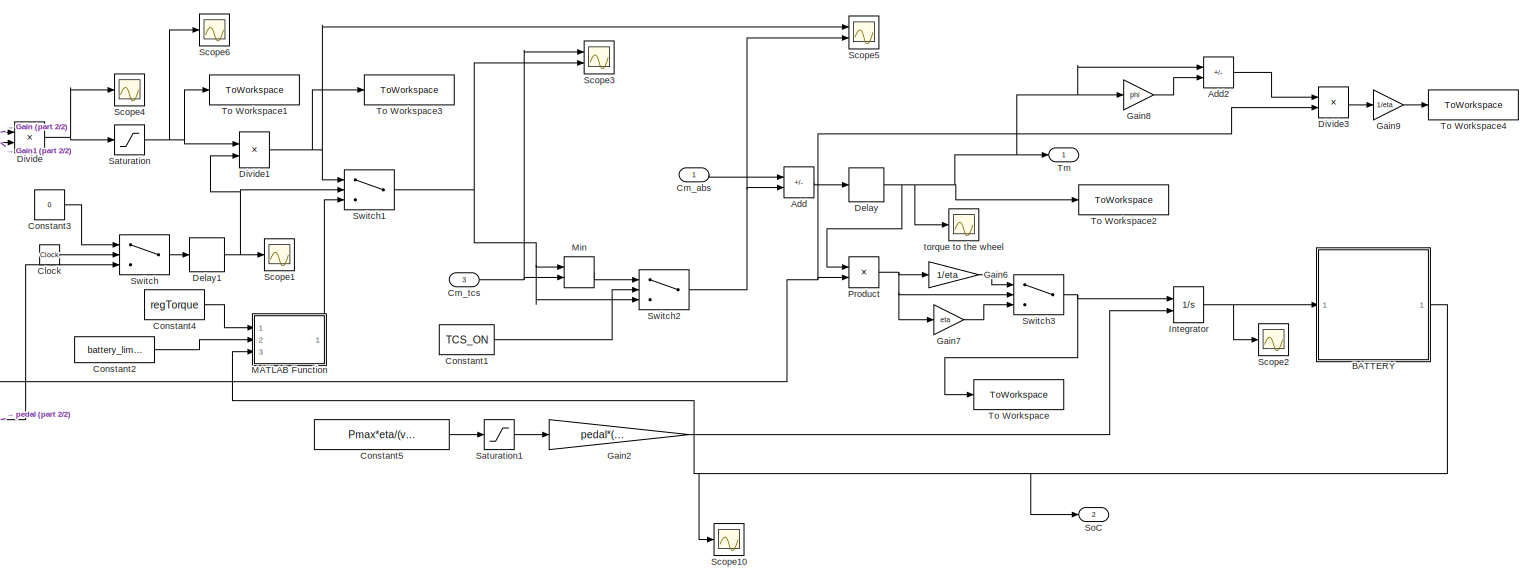
[diagram: torque generator - part 1/2, most of the canvas]
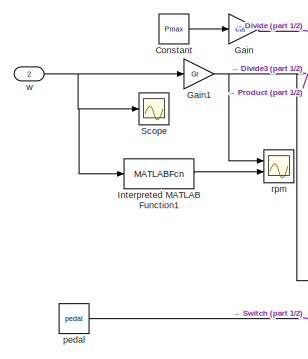
[diagram: torque generator - part 2/2, middle left region]
BLOCK [SubSystem] torque generator
  PortSchema = {"entries":[{"content":{"sides":[{"content":{"connectorIds":["Out1","Out2"]},"type":"ConnectorPlacement.EquallySpacedRectSide","uuid":"aba36ed2-9b43-4b5e-a032-9d2e14e4331b"},{"content":{"connectorIds":["In1","In2","In3"],"side":"RIGHT"},"type":"ConnectorPlacement.EquallySpacedRectSide","uuid":"b07ddcf2-8a87-4222-b0b4-5c7ab20df70e"},{"content":{"connectorIds":[],"side":"TOP"},"type":"ConnectorPlace...<+259ch>
  Ports = [3, 2]
  RequestExecContextInheritance = off
BLOCK [Sum] torque generator/Add
  IconShape = rectangular
  Inputs = -+
  Ports = [2, 1]
BLOCK [Sum] torque generator/Add2
  IconShape = rectangular
  Inputs = +-
  Ports = [2, 1]
BLOCK [SubSystem] torque generator/BATTERY
  Ports = [1, 1]
  RequestExecContextInheritance = off
BLOCK [Sum] torque generator/BATTERY/Add
  IconShape = rectangular
  Inputs = +-
  Ports = [2, 1]
BLOCK [Constant] torque generator/BATTERY/Constant
  Value = battery_capacity
BLOCK [Gain] torque generator/BATTERY/Gain
  Gain = 100/battery_capacity
  NameLocation = right
BLOCK [Inport] torque generator/BATTERY/In1
BLOCK [Saturate] torque generator/BATTERY/Saturation
  LowerLimit = 0
  UpperLimit = battery_capacity
BLOCK [Scope] torque generator/BATTERY/Scope
  Floating = off
  NumInputPorts = 1
  Ports = [1]
  ScopeSpecificationString = Simulink.scopes.TimeScopeBlockCfg('CurrentConfiguration', extmgr.ConfigurationSet(extmgr.Configuration('Core','General UI',true),extmgr.Configuration('Core','Source UI',true),extmgr.Configuration('Sources','WiredSimulink',true,'DataLoggingVariableName','ScopeData1'),extmgr.Configuration('Visuals','Time Domain',true,'SerializedDisplays',{struct('MinYLimReal','207096404.93567','MaxYLimReal','2089750...<+1484ch>
BLOCK [Outport] torque generator/BATTERY/SoC
BLOCK [ToWorkspace] torque generator/BATTERY/To Workspace
  FixptAsFi = on
  MaxDataPoints = inf
  Ports = [1]
  SampleTime = -1
  VariableName = battery_charge
BLOCK [Clock] torque generator/Clock
BLOCK [Inport] torque generator/Cm_abs
BLOCK [Inport] torque generator/Cm_tcs
  Port = 3
BLOCK [Constant] torque generator/Constant
  Value = Pmax
BLOCK [Constant] torque generator/Constant1
  Value = TCS_ON
BLOCK [Constant] torque generator/Constant2
  Value = battery_limit
BLOCK [Constant] torque generator/Constant3
  Value = 0
BLOCK [Constant] torque generator/Constant4
  Value = regTorque
BLOCK [Constant] torque generator/Constant5
  Value = Pmax*eta/(velstart*(Gr/R))
BLOCK [Delay] torque generator/Delay
  DelayLength = 50
  InputPortMap = u0
  Ports = [1, 1]
BLOCK [Delay] torque generator/Delay1
  DelayLength = 20
  InputPortMap = u0
  Ports = [1, 1]
BLOCK [Product] torque generator/Divide
  Inputs = */
  Ports = [2, 1]
BLOCK [Product] torque generator/Divide1
  Inputs = **
  Ports = [2, 1]
BLOCK [Product] torque generator/Divide3
  Ports = [2, 1]
BLOCK [Gain] torque generator/Gain
  Gain = eta
BLOCK [Gain] torque generator/Gain1
  Gain = Gr
BLOCK [Gain] torque generator/Gain2
  Gain = pedal*(velstart/R)
BLOCK [Gain] torque generator/Gain6
  Gain = 1/eta
BLOCK [Gain] torque generator/Gain7
  Gain = eta
BLOCK [Gain] torque generator/Gain8
  Gain = phi
BLOCK [Gain] torque generator/Gain9
  Gain = 1/eta
BLOCK [Integrator] torque generator/Integrator
  InitialConditionSource = external
  Ports = [2, 1]
BLOCK [MATLABFcn] torque generator/Interpreted MATLAB Function1
  MATLABFcn = (u*60*Gr)/(2*pi*R)
  Ports = [1, 1]
BLOCK [SubSystem] torque generator/MATLAB Function
  ErrorFcn = Stateflow.Translate.translate
  PermitHierarchicalResolution = ExplicitOnly
  Ports = [3, 1]
  RequestExecContextInheritance = off
  SFBlockType = MATLAB Function
  TreatAsAtomicUnit = on
BLOCK [Demux] torque generator/MATLAB Function/ Demux 
  Outputs = 1
  Ports = [1, 1]
BLOCK [S-Function] torque generator/MATLAB Function/ SFunction 
  EnableBusSupport = on
  FunctionName = sf_sfun
  PortCounts = [3 2]
  Ports = [3, 2]
  SFcnIsStateOwnerBlock = off
  SFunctionDeploymentMode = off
  Tag = Stateflow S-Function 18
BLOCK [Terminator] torque generator/MATLAB Function/ Terminator 
BLOCK [Inport] torque generator/MATLAB Function/SoC
  Port = 3
BLOCK [Inport] torque generator/MATLAB Function/battery_limit
  Port = 2
BLOCK [Inport] torque generator/MATLAB Function/reg
BLOCK [Outport] torque generator/MATLAB Function/y
BLOCK [MinMax] torque generator/Min
  Inputs = 2
  Ports = [2, 1]
BLOCK [Product] torque generator/Product
  Ports = [2, 1]
BLOCK [Saturate] torque generator/Saturation
  LowerLimit = 0
  UpperLimit = Cm
BLOCK [Saturate] torque generator/Saturation1
  LowerLimit = -Cm
  UpperLimit = Cm
BLOCK [Scope] torque generator/Scope
  Floating = off
  NumInputPorts = 1
  Ports = [1]
  ScopeSpecificationString = Simulink.scopes.TimeScopeBlockCfg('CurrentConfiguration', extmgr.ConfigurationSet(extmgr.Configuration('Core','General UI',true),extmgr.Configuration('Core','Source UI',true),extmgr.Configuration('Sources','WiredSimulink',true,'DataLoggingVariableName','ScopeData2'),extmgr.Configuration('Visuals','Time Domain',true,'SerializedDisplays',{struct('MinYLimReal','31.85253','MaxYLimReal','31.86134','YLa...<+1564ch>
BLOCK [Scope] torque generator/Scope1
  Floating = off
  NumInputPorts = 1
  Ports = [1]
  ScopeSpecificationString = Simulink.scopes.TimeScopeBlockCfg('CurrentConfiguration', extmgr.ConfigurationSet(extmgr.Configuration('Core','General UI',true),extmgr.Configuration('Core','Source UI',true),extmgr.Configuration('Sources','WiredSimulink',true,'DataLoggingVariableName','ScopeData1'),extmgr.Configuration('Visuals','Time Domain',true,'SerializedDisplays',{struct('MinYLimReal','-0.125','MaxYLimReal','1.125','YLabelRe...<+1430ch>
BLOCK [Scope] torque generator/Scope10
  Floating = off
  NumInputPorts = 1
  Ports = [1]
  ScopeSpecificationString = Simulink.scopes.TimeScopeBlockCfg('CurrentConfiguration', extmgr.ConfigurationSet(extmgr.Configuration('Core','General UI',true),extmgr.Configuration('Core','Source UI',true),extmgr.Configuration('Sources','WiredSimulink',true,'DataLoggingVariableName','ScopeData2'),extmgr.Configuration('Visuals','Time Domain',true,'SerializedDisplays',{struct('MinYLimReal','94.33951','MaxYLimReal','100.62871','YL...<+1420ch>
BLOCK [Scope] torque generator/Scope2
  Floating = off
  NumInputPorts = 1
  Ports = [1]
  ScopeSpecificationString = Simulink.scopes.TimeScopeBlockCfg('CurrentConfiguration', extmgr.ConfigurationSet(extmgr.Configuration('Core','General UI',true),extmgr.Configuration('Core','Source UI',true),extmgr.Configuration('Sources','WiredSimulink',true,'DataLoggingVariableName','ScopeData1'),extmgr.Configuration('Visuals','Time Domain',true,'SerializedDisplays',{struct('MinYLimReal','-175002.6262','MaxYLimReal','1703595.06...<+1461ch>
BLOCK [Scope] torque generator/Scope3
  Floating = off
  NumInputPorts = 2
  Ports = [2]
  ScopeSpecificationString = Simulink.scopes.TimeScopeBlockCfg('CurrentConfiguration', extmgr.ConfigurationSet(extmgr.Configuration('Core','General UI',true),extmgr.Configuration('Core','Source UI',true),extmgr.Configuration('Sources','WiredSimulink',true,'DataLoggingVariableName','ScopeData6'),extmgr.Configuration('Visuals','Time Domain',true,'SerializedDisplays',{struct('MinYLimReal','-38.75','MaxYLimReal','348.75','YLabelR...<+1481ch>
BLOCK [Scope] torque generator/Scope4
  Floating = off
  NumInputPorts = 1
  Ports = [1]
  ScopeSpecificationString = Simulink.scopes.TimeScopeBlockCfg('CurrentConfiguration', extmgr.ConfigurationSet(extmgr.Configuration('Core','General UI',true),extmgr.Configuration('Core','Source UI',true),extmgr.Configuration('Sources','WiredSimulink',true,'DataLoggingVariableName','ScopeData2'),extmgr.Configuration('Visuals','Time Domain',true,'SerializedDisplays',{struct('MinYLimReal','-6232046.05027','MaxYLimReal','2973510....<+1485ch>
BLOCK [Scope] torque generator/Scope5
  Floating = off
  NumInputPorts = 2
  Ports = [2]
  ScopeSpecificationString = Simulink.scopes.TimeScopeBlockCfg('CurrentConfiguration', extmgr.ConfigurationSet(extmgr.Configuration('Core','General UI',true),extmgr.Configuration('Core','Source UI',true),extmgr.Configuration('Sources','WiredSimulink',true,'DataLoggingVariableName','ScopeData2'),extmgr.Configuration('Visuals','Time Domain',true,'SerializedDisplays',{struct('MinYLimReal','-38.75','MaxYLimReal','348.75','YLabelR...<+1441ch>
BLOCK [Scope] torque generator/Scope6
  Floating = off
  NumInputPorts = 1
  Ports = [1]
  ScopeSpecificationString = Simulink.scopes.TimeScopeBlockCfg('CurrentConfiguration', extmgr.ConfigurationSet(extmgr.Configuration('Core','General UI',true),extmgr.Configuration('Core','Source UI',true),extmgr.Configuration('Sources','WiredSimulink',true,'DataLoggingVariableName','ScopeData1'),extmgr.Configuration('Visuals','Time Domain',true,'SerializedDisplays',{struct('MinYLimReal','75.48881','MaxYLimReal','336.0568','YLa...<+1431ch>
BLOCK [Outport] torque generator/SoC
  Port = 2
BLOCK [Switch] torque generator/Switch
  Criteria = u2 > Threshold
  InputSameDT = off
  SaturateOnIntegerOverflow = off
  Threshold = brake_start
BLOCK [Switch] torque generator/Switch1
  Criteria = u2 > Threshold
  InputSameDT = off
  SaturateOnIntegerOverflow = off
BLOCK [Switch] torque generator/Switch2
  Criteria = u2 > Threshold
  InputSameDT = off
  SaturateOnIntegerOverflow = off
BLOCK [Switch] torque generator/Switch3
  Criteria = u2 > Threshold
  InputSameDT = off
  SaturateOnIntegerOverflow = off
BLOCK [Outport] torque generator/Tm
BLOCK [ToWorkspace] torque generator/To Workspace
  FixptAsFi = on
  MaxDataPoints = inf
  Ports = [1]
  SampleTime = -1
  VariableName = power_consumption
BLOCK [ToWorkspace] torque generator/To Workspace1
  FixptAsFi = on
  MaxDataPoints = inf
  Ports = [1]
  SampleTime = -1
  VariableName = electric_powertrain
BLOCK [ToWorkspace] torque generator/To Workspace2
  FixptAsFi = on
  MaxDataPoints = inf
  Ports = [1]
  SampleTime = -1
  VariableName = torque_wheel
BLOCK [ToWorkspace] torque generator/To Workspace3
  FixptAsFi = on
  MaxDataPoints = inf
  Ports = [1]
  SampleTime = -1
  VariableName = requested_torque
BLOCK [ToWorkspace] torque generator/To Workspace4
  FixptAsFi = on
  MaxDataPoints = inf
  Ports = [1]
  SampleTime = -1
  VariableName = transmission_power_loss
BLOCK [Constant] torque generator/pedal
  Value = pedal
BLOCK [Scope] torque generator/rpm
  Floating = off
  NumInputPorts = 2
  Ports = [2]
  ScopeSpecificationString = Simulink.scopes.TimeScopeBlockCfg('CurrentConfiguration', extmgr.ConfigurationSet(extmgr.Configuration('Core','General UI',true),extmgr.Configuration('Core','Source UI',true),extmgr.Configuration('Sources','WiredSimulink',true,'DataLoggingVariableName','ScopeData1'),extmgr.Configuration('Visuals','Time Domain',true,'SerializedDisplays',{struct('MinYLimReal','-4815.64959','MaxYLimReal','41589.29849...<+1490ch>
BLOCK [Scope] torque generator/torque to the wheel
  Floating = off
  NumInputPorts = 1
  Ports = [1]
  ScopeSpecificationString = Simulink.scopes.TimeScopeBlockCfg('CurrentConfiguration', extmgr.ConfigurationSet(extmgr.Configuration('Core','General UI',true),extmgr.Configuration('Core','Source UI',true),extmgr.Configuration('Sources','WiredSimulink',true),extmgr.Configuration('Visuals','Time Domain',true,'SerializedDisplays',{struct('MinYLimReal','-105.18041','MaxYLimReal','356.13116','YLabelReal','','MinYLimMag',' 0.00000',...<+1528ch>
BLOCK [Inport] torque generator/w
  Port = 2
LINE Add:1 -> To Workspace1:1
NET Braking System/ABS controller/ Lag 2:1 -> Braking System/ABS controller/Mux3:1, Braking System/ABS controller/Scope5:2
LINE Braking System/ABS controller/ABS active? (front):1 -> Braking System/ABS controller/MATLAB Function2:8
LINE Braking System/ABS controller/ABS active? (rear):1 -> Braking System/ABS controller/MATLAB Function2:9
LINE Braking System/ABS controller/Constant1:1 -> Braking System/ABS controller/MATLAB Function2:2
LINE Braking System/ABS controller/Constant2:1 -> Braking System/ABS controller/MATLAB Function2:3
LINE Braking System/ABS controller/Constant3:1 -> Braking System/ABS controller/MATLAB Function2:4
LINE Braking System/ABS controller/Constant4:1 -> Braking System/ABS controller/Switch:2
LINE Braking System/ABS controller/Constant5:1 -> Braking System/ABS controller/MATLAB Function1:2
NET Braking System/ABS controller/Constant6:1 -> Braking System/ABS controller/Switch1:3, Braking System/ABS controller/Switch:3
LINE Braking System/ABS controller/Constant:1 -> Braking System/ABS controller/MATLAB Function2:1
LINE Braking System/ABS controller/Demux1:1 -> Braking System/ABS controller/PID Front:1
LINE Braking System/ABS controller/Demux1:2 -> Braking System/ABS controller/PID Rear:1
NET Braking System/ABS controller/EBD:1 -> Braking System/ABS controller/PID Rear1:1, Braking System/ABS controller/Scope12:1, Braking System/ABS controller/Switch1:2
NET Braking System/ABS controller/Lag 1:1 -> Braking System/ABS controller/MATLAB Function1:1, Braking System/ABS controller/Scope7:1
NET Braking System/ABS controller/MATLAB Function1:1 -> Braking System/ABS controller/Mux3:2, Braking System/ABS controller/Scope8:1
NET Braking System/ABS controller/MATLAB Function1:2 -> Braking System/ABS controller/Mux3:3, Braking System/ABS controller/Scope9:1
NET Braking System/ABS controller/MATLAB Function2:1 -> Braking System/ABS controller/ Lag 2:1, Braking System/ABS controller/Scope5:1
NET Braking System/ABS controller/MATLAB Function2:2 -> Braking System/ABS controller/Min:1, Braking System/ABS controller/Scope10:1
LINE Braking System/ABS controller/MATLAB Function2:3 -> Braking System/ABS controller/ABS active? (front):1
LINE Braking System/ABS controller/MATLAB Function2:4 -> Braking System/ABS controller/ABS active? (rear):1
NET Braking System/ABS controller/MATLAB Function:1 -> Braking System/ABS controller/Scope6:1, Braking System/ABS controller/Sum:2
LINE Braking System/ABS controller/Min:1 -> Braking System/ABS controller/Lag 1:1
NET Braking System/ABS controller/Mux1:1 -> Braking System/ABS controller/MATLAB Function2:5, Braking System/ABS controller/Scope:1
LINE Braking System/ABS controller/Mux2:1 -> Braking System/ABS controller/MATLAB Function2:6
LINE Braking System/ABS controller/Mux3:1 -> Braking System/ABS controller/Output:1
LINE Braking System/ABS controller/Mux:1 -> Braking System/ABS controller/Sum:1
LINE Braking System/ABS controller/PID Front:1 -> Braking System/ABS controller/Mux1:1
LINE Braking System/ABS controller/PID Rear1:1 -> Braking System/ABS controller/Switch1:1
LINE Braking System/ABS controller/PID Rear:1 -> Braking System/ABS controller/Mux1:2
NET Braking System/ABS controller/Sum:1 -> Braking System/ABS controller/Demux1:1, Braking System/ABS controller/Scope1:1
LINE Braking System/ABS controller/Switch1:1 -> Braking System/ABS controller/Switch:1
NET Braking System/ABS controller/Switch:1 -> Braking System/ABS controller/Min:2, Braking System/ABS controller/Scope11:1
NET Braking System/ABS controller/s_front:1 -> Braking System/ABS controller/EBD:2, Braking System/ABS controller/Mux2:1, Braking System/ABS controller/Scope3:1
NET Braking System/ABS controller/s_rear:1 -> Braking System/ABS controller/EBD:1, Braking System/ABS controller/Mux2:2, Braking System/ABS controller/Scope4:1
NET Braking System/ABS controller/v:1 -> Braking System/ABS controller/EBD:3, Braking System/ABS controller/MATLAB Function2:7, Braking System/ABS controller/MATLAB Function:1
NET Braking System/ABS controller/w_front:1 -> Braking System/ABS controller/Mux:1, Braking System/ABS controller/Scope2:1
LINE Braking System/ABS controller/w_rear:1 -> Braking System/ABS controller/Mux:2
LINE Braking System/ABS controller:1 -> Braking System/Switch1:1
NET Braking System/AND:1 -> Braking System/Scope1:1, Braking System/Switch1:2
NET Braking System/Clock:1 -> Braking System/Switch:2, Braking System/To Workspace:1
LINE Braking System/Constant1:1 -> Braking System/Switch1:3
LINE Braking System/Constant2:1 -> Braking System/AND:1
LINE Braking System/Constant3:1 -> Braking System/Delay1:1
LINE Braking System/Constant4:1 -> Braking System/MATLAB Function:3
LINE Braking System/Constant:1 -> Braking System/Switch:3
LINE Braking System/Delay1:1 -> Braking System/AND:2
LINE Braking System/Demux:1 -> Braking System/Gain:1
LINE Braking System/Demux:2 -> Braking System/Cf_r:1
LINE Braking System/Demux:3 -> Braking System/MATLAB Function:1
LINE Braking System/Gain:1 -> Braking System/Cf_f:1
LINE Braking System/MATLAB Function:1 -> Braking System/Cm_abs:1
LINE Braking System/SoC1:1 -> Braking System/MATLAB Function:2
LINE Braking System/Switch1:1 -> Braking System/Switch:1
NET Braking System/Switch:1 -> Braking System/Demux:1, Braking System/Scope:1
LINE Braking System/s_front:1 -> Braking System/ABS controller:4
LINE Braking System/s_rear:1 -> Braking System/ABS controller:5
LINE Braking System/v:1 -> Braking System/ABS controller:3
LINE Braking System/w_front:1 -> Braking System/ABS controller:2
LINE Braking System/w_rear:1 -> Braking System/ABS controller:1
NET Braking System:1 -> Tyre Fl:2, Tyre Fr:2
NET Braking System:2 -> Tyre Rl:3, Tyre Rr:3
LINE Braking System:3 -> torque generator:1
NET From1:1 -> Add:2, Mux:2
NET From2:1 -> Add:3, Mux:3
NET From3:1 -> Add:4, Mux:4
NET From:1 -> Add:1, Mux:1
NET Gain1:1 -> Tyre Rl:1, Tyre Rr:1
NET Long Dynamics/Add1:1 -> Long Dynamics/Add:1, Long Dynamics/Scope2:1
LINE Long Dynamics/Add:1 -> Long Dynamics/Gain2:1
LINE Long Dynamics/Constant:1 -> Long Dynamics/Integrator:2
LINE Long Dynamics/FxFl:1 -> Long Dynamics/Add1:3
LINE Long Dynamics/FxFr:1 -> Long Dynamics/Add1:4
LINE Long Dynamics/FxRl:1 -> Long Dynamics/Add1:1
LINE Long Dynamics/FxRr:1 -> Long Dynamics/Add1:2
NET Long Dynamics/Gain1:1 -> Long Dynamics/Add:2, Long Dynamics/Scope4:1, Long Dynamics/To Workspace1:1
NET Long Dynamics/Gain2:1 -> Long Dynamics/Gain:1, Long Dynamics/Integrator:1, Long Dynamics/Scope:1, Long Dynamics/To Workspace2:1
LINE Long Dynamics/Gain:1 -> Long Dynamics/Scope5:1
NET Long Dynamics/Integrator:1 -> Long Dynamics/MATLAB Function:1, Long Dynamics/Scope1:1, Long Dynamics/Square:1, Long Dynamics/To Workspace3:1, Long Dynamics/vel_x:1
NET Long Dynamics/MATLAB Function:1 -> Long Dynamics/Scope3:1, Long Dynamics/Stop Simulation:1
LINE Long Dynamics/Square:1 -> Long Dynamics/Gain1:1
NET Long Dynamics:1 -> Braking System:3, Tracition Control System:2, Tyre Fl:1, Tyre Fr:1, Tyre Rl:2, Tyre Rr:2
LINE Mux:1 -> Scope4:1
NET Tracition Control System/AND:1 -> Tracition Control System/Scope1:1, Tracition Control System/Switch1:2
LINE Tracition Control System/Clock:1 -> Tracition Control System/Switch:2
LINE Tracition Control System/Constant2:1 -> Tracition Control System/Switch:1
LINE Tracition Control System/Constant3:1 -> Tracition Control System/AND:1
LINE Tracition Control System/Constant4:1 -> Tracition Control System/Delay:1
LINE Tracition Control System/Constant:1 -> Tracition Control System/Switch1:3
LINE Tracition Control System/Delay:1 -> Tracition Control System/AND:2
LINE Tracition Control System/Switch1:1 -> Tracition Control System/Switch:3
NET Tracition Control System/Switch:1 -> Tracition Control System/Cm_tcs:1, Tracition Control System/Scope:1
LINE Tracition Control System/TCS controller/ABS active? (rear):1 -> Tracition Control System/TCS controller/MATLAB Function2:5
LINE Tracition Control System/TCS controller/Constant3:1 -> Tracition Control System/TCS controller/MATLAB Function2:2
LINE Tracition Control System/TCS controller/Constant:1 -> Tracition Control System/TCS controller/MATLAB Function2:1
NET Tracition Control System/TCS controller/MATLAB Function2:1 -> Tracition Control System/TCS controller/Output:1, Tracition Control System/TCS controller/Scope2:1, Tracition Control System/TCS controller/Scope2:2, Tracition Control System/TCS controller/Scope5:2, Tracition Control System/TCS controller/Scope5:3
LINE Tracition Control System/TCS controller/MATLAB Function2:2 -> Tracition Control System/TCS controller/ABS active? (rear):1
LINE Tracition Control System/TCS controller/MATLAB Function:1 -> Tracition Control System/TCS controller/Sum:2
NET Tracition Control System/TCS controller/PID Rear:1 -> Tracition Control System/TCS controller/MATLAB Function2:3, Tracition Control System/TCS controller/Scope5:1, Tracition Control System/TCS controller/Scope:1
NET Tracition Control System/TCS controller/Sum:1 -> Tracition Control System/TCS controller/PID Rear:1, Tracition Control System/TCS controller/Scope1:1
NET Tracition Control System/TCS controller/s_rear:1 -> Tracition Control System/TCS controller/MATLAB Function2:4, Tracition Control System/TCS controller/Scope4:1
LINE Tracition Control System/TCS controller/v:1 -> Tracition Control System/TCS controller/MATLAB Function:1
LINE Tracition Control System/TCS controller/w_rear:1 -> Tracition Control System/TCS controller/Sum:1
LINE Tracition Control System/TCS controller:1 -> Tracition Control System/Switch1:1
LINE Tracition Control System/s_rear:1 -> Tracition Control System/TCS controller:3
LINE Tracition Control System/v:1 -> Tracition Control System/TCS controller:2
LINE Tracition Control System/w_rear:1 -> Tracition Control System/TCS controller:1
LINE Tracition Control System:1 -> torque generator:3
LINE Tyre Fl/Cf:1 -> Tyre Fl/wheel dynamics FL3:2
LINE Tyre Fl/Constant10:1 -> Tyre Fl/Pacejka 1:2
LINE Tyre Fl/Constant15:1 -> Tyre Fl/wheel dynamics FL3:4
LINE Tyre Fl/Constant16:1 -> Tyre Fl/wheel dynamics FL3:5
LINE Tyre Fl/Constant17:1 -> Tyre Fl/Pacejka 1:4
LINE Tyre Fl/Constant18:1 -> Tyre Fl/Pacejka 1:5
LINE Tyre Fl/Constant19:1 -> Tyre Fl/Pacejka 1:6
LINE Tyre Fl/Constant1:1 -> Tyre Fl/wheel dynamics FL3:1
LINE Tyre Fl/Constant20:1 -> Tyre Fl/Pacejka 1:8
LINE Tyre Fl/Constant:1 -> Tyre Fl/Pacejka 1:1
NET Tyre Fl/Demux:1 -> Tyre Fl/Fx:1, Tyre Fl/Mux:1, Tyre Fl/Product:1, Tyre Fl/longitudinal force:1, Tyre Fl/wheel dynamics FL3:3
NET Tyre Fl/Demux:2 -> Tyre Fl/Mux:2, Tyre Fl/lateral force:1
LINE Tyre Fl/Demux:3 -> Tyre Fl/Scope1:1
NET Tyre Fl/Gain2:1 -> Tyre Fl/Pacejka 1:7, Tyre Fl/SLIP RATIO:2, Tyre Fl/Scope2:2
LINE Tyre Fl/Mux:1 -> Tyre Fl/forces:1
LINE Tyre Fl/Pacejka 1:1 -> Tyre Fl/Demux:1
LINE Tyre Fl/Pacejka 1:2 -> Tyre Fl/Scope5:1
LINE Tyre Fl/Product:1 -> Tyre Fl/Scope3:1
NET Tyre Fl/SLIP RATIO:1 -> Tyre Fl/Pacejka 1:3, Tyre Fl/Product:3, Tyre Fl/Scope:1, Tyre Fl/s:1
NET Tyre Fl/vel:1 -> Tyre Fl/Product:2, Tyre Fl/SLIP RATIO:1, Tyre Fl/Scope2:1
LINE Tyre Fl/wheel dynamics FL3/Add:1 -> Tyre Fl/wheel dynamics FL3/Divide:1
NET Tyre Fl/wheel dynamics FL3/Cf:1 -> Tyre Fl/wheel dynamics FL3/Add:2, Tyre Fl/wheel dynamics FL3/Mux1:2
NET Tyre Fl/wheel dynamics FL3/Cm:1 -> Tyre Fl/wheel dynamics FL3/Add:1, Tyre Fl/wheel dynamics FL3/Mux1:1, Tyre Fl/wheel dynamics FL3/Scope1:1
LINE Tyre Fl/wheel dynamics FL3/Constant:1 -> Tyre Fl/wheel dynamics FL3/Divide:2
NET Tyre Fl/wheel dynamics FL3/Divide:1 -> Tyre Fl/wheel dynamics FL3/Integrator Limited:1, Tyre Fl/wheel dynamics FL3/Scope2:2
LINE Tyre Fl/wheel dynamics FL3/Fx:1 -> Tyre Fl/wheel dynamics FL3/Product:1
LINE Tyre Fl/wheel dynamics FL3/Fz:1 -> Tyre Fl/wheel dynamics FL3/Gain1:1
LINE Tyre Fl/wheel dynamics FL3/Gain1:1 -> Tyre Fl/wheel dynamics FL3/MATLAB Function:1
NET Tyre Fl/wheel dynamics FL3/Gain:1 -> Tyre Fl/wheel dynamics FL3/MATLAB Function:2, Tyre Fl/wheel dynamics FL3/Scope3:1
NET Tyre Fl/wheel dynamics FL3/Integrator Limited:1 -> Tyre Fl/wheel dynamics FL3/Gain:1, Tyre Fl/wheel dynamics FL3/Scope2:1, Tyre Fl/wheel dynamics FL3/wr:1
LINE Tyre Fl/wheel dynamics FL3/Interpreted MATLAB Function:1 -> Tyre Fl/wheel dynamics FL3/Integrator Limited:2
NET Tyre Fl/wheel dynamics FL3/MATLAB Function:1 -> Tyre Fl/wheel dynamics FL3/Add:4, Tyre Fl/wheel dynamics FL3/Goto:1, Tyre Fl/wheel dynamics FL3/Mux1:4
LINE Tyre Fl/wheel dynamics FL3/Mux1:1 -> Tyre Fl/wheel dynamics FL3/Scope:1
NET Tyre Fl/wheel dynamics FL3/Product:1 -> Tyre Fl/wheel dynamics FL3/Add:3, Tyre Fl/wheel dynamics FL3/Mux1:3
NET Tyre Fl/wheel dynamics FL3/R:1 -> Tyre Fl/wheel dynamics FL3/Interpreted MATLAB Function:1, Tyre Fl/wheel dynamics FL3/Product:2
NET Tyre Fl/wheel dynamics FL3:1 -> Tyre Fl/Gain2:1, Tyre Fl/angular velocity:1, Tyre Fl/w:1
LINE Tyre Fl:1 -> Long Dynamics:3
LINE Tyre Fl:2 -> Braking System:2
LINE Tyre Fl:3 -> Braking System:4
LINE Tyre Fr/Cf:1 -> Tyre Fr/wheel dynamics FL3:2
LINE Tyre Fr/Constant10:1 -> Tyre Fr/Pacejka 1:2
LINE Tyre Fr/Constant15:1 -> Tyre Fr/wheel dynamics FL3:4
LINE Tyre Fr/Constant16:1 -> Tyre Fr/wheel dynamics FL3:5
LINE Tyre Fr/Constant17:1 -> Tyre Fr/Pacejka 1:4
LINE Tyre Fr/Constant18:1 -> Tyre Fr/Pacejka 1:5
LINE Tyre Fr/Constant19:1 -> Tyre Fr/Pacejka 1:6
LINE Tyre Fr/Constant1:1 -> Tyre Fr/wheel dynamics FL3:1
LINE Tyre Fr/Constant20:1 -> Tyre Fr/Pacejka 1:8
LINE Tyre Fr/Constant:1 -> Tyre Fr/Pacejka 1:1
NET Tyre Fr/Demux:1 -> Tyre Fr/Fx:1, Tyre Fr/Mux:1, Tyre Fr/To Workspace2:1, Tyre Fr/longitudinal force:1, Tyre Fr/wheel dynamics FL3:3
NET Tyre Fr/Demux:2 -> Tyre Fr/Mux:2, Tyre Fr/lateral force:1
LINE Tyre Fr/Demux:3 -> Tyre Fr/Scope1:1
NET Tyre Fr/Gain2:1 -> Tyre Fr/Pacejka 1:7, Tyre Fr/SLIP RATIO:2
LINE Tyre Fr/Mux:1 -> Tyre Fr/forces:1
LINE Tyre Fr/Pacejka 1:1 -> Tyre Fr/Demux:1
LINE Tyre Fr/Pacejka 1:2 -> Tyre Fr/Scope5:1
NET Tyre Fr/SLIP RATIO:1 -> Tyre Fr/Pacejka 1:3, Tyre Fr/To Workspace1:1
LINE Tyre Fr/vel:1 -> Tyre Fr/SLIP RATIO:1
LINE Tyre Fr/wheel dynamics FL3/Add:1 -> Tyre Fr/wheel dynamics FL3/Divide:1
NET Tyre Fr/wheel dynamics FL3/Cf:1 -> Tyre Fr/wheel dynamics FL3/Add:2, Tyre Fr/wheel dynamics FL3/Mux1:2
NET Tyre Fr/wheel dynamics FL3/Cm:1 -> Tyre Fr/wheel dynamics FL3/Add:1, Tyre Fr/wheel dynamics FL3/Mux1:1, Tyre Fr/wheel dynamics FL3/Scope1:1
LINE Tyre Fr/wheel dynamics FL3/Constant:1 -> Tyre Fr/wheel dynamics FL3/Divide:2
NET Tyre Fr/wheel dynamics FL3/Divide:1 -> Tyre Fr/wheel dynamics FL3/Integrator Limited:1, Tyre Fr/wheel dynamics FL3/Scope2:2
LINE Tyre Fr/wheel dynamics FL3/Fx:1 -> Tyre Fr/wheel dynamics FL3/Product:1
LINE Tyre Fr/wheel dynamics FL3/Fz:1 -> Tyre Fr/wheel dynamics FL3/Gain1:1
LINE Tyre Fr/wheel dynamics FL3/Gain1:1 -> Tyre Fr/wheel dynamics FL3/MATLAB Function:1
NET Tyre Fr/wheel dynamics FL3/Gain:1 -> Tyre Fr/wheel dynamics FL3/MATLAB Function:2, Tyre Fr/wheel dynamics FL3/Scope3:1
NET Tyre Fr/wheel dynamics FL3/Integrator Limited:1 -> Tyre Fr/wheel dynamics FL3/Gain:1, Tyre Fr/wheel dynamics FL3/Scope2:1, Tyre Fr/wheel dynamics FL3/wr:1
LINE Tyre Fr/wheel dynamics FL3/Interpreted MATLAB Function:1 -> Tyre Fr/wheel dynamics FL3/Integrator Limited:2
NET Tyre Fr/wheel dynamics FL3/MATLAB Function:1 -> Tyre Fr/wheel dynamics FL3/Add:4, Tyre Fr/wheel dynamics FL3/Goto:1, Tyre Fr/wheel dynamics FL3/Mux1:4
LINE Tyre Fr/wheel dynamics FL3/Mux1:1 -> Tyre Fr/wheel dynamics FL3/Scope:1
NET Tyre Fr/wheel dynamics FL3/Product:1 -> Tyre Fr/wheel dynamics FL3/Add:3, Tyre Fr/wheel dynamics FL3/Mux1:3
NET Tyre Fr/wheel dynamics FL3/R:1 -> Tyre Fr/wheel dynamics FL3/Interpreted MATLAB Function:1, Tyre Fr/wheel dynamics FL3/Product:2
NET Tyre Fr/wheel dynamics FL3:1 -> Tyre Fr/Gain2:1, Tyre Fr/angular velocity:1
LINE Tyre Fr:1 -> Long Dynamics:4
LINE Tyre Rl/Cf:1 -> Tyre Rl/wheel dynamics FL3:2
LINE Tyre Rl/Constant10:1 -> Tyre Rl/Pacejka 1:2
LINE Tyre Rl/Constant15:1 -> Tyre Rl/wheel dynamics FL3:4
LINE Tyre Rl/Constant16:1 -> Tyre Rl/wheel dynamics FL3:5
LINE Tyre Rl/Constant17:1 -> Tyre Rl/Pacejka 1:4
LINE Tyre Rl/Constant18:1 -> Tyre Rl/Pacejka 1:5
LINE Tyre Rl/Constant19:1 -> Tyre Rl/Pacejka 1:6
LINE Tyre Rl/Constant20:1 -> Tyre Rl/Pacejka 1:8
LINE Tyre Rl/Constant:1 -> Tyre Rl/Pacejka 1:1
NET Tyre Rl/Demux:1 -> Tyre Rl/Fx:1, Tyre Rl/Mux:1, Tyre Rl/To Workspace:1, Tyre Rl/longitudinal force:1, Tyre Rl/wheel dynamics FL3:3
NET Tyre Rl/Demux:2 -> Tyre Rl/Mux:2, Tyre Rl/lateral force:1
LINE Tyre Rl/Demux:3 -> Tyre Rl/Scope1:1
NET Tyre Rl/Gain2:1 -> Tyre Rl/Mux1:2, Tyre Rl/Pacejka 1:7, Tyre Rl/SLIP RATIO:2, Tyre Rl/To Workspace3:1
LINE Tyre Rl/Mux1:1 -> Tyre Rl/Scope2:1
LINE Tyre Rl/Mux:1 -> Tyre Rl/forces:1
LINE Tyre Rl/Pacejka 1:1 -> Tyre Rl/Demux:1
LINE Tyre Rl/Pacejka 1:2 -> Tyre Rl/Scope5:1
NET Tyre Rl/SLIP RATIO:1 -> Tyre Rl/Pacejka 1:3, Tyre Rl/Scope:1, Tyre Rl/To Workspace1:1, Tyre Rl/s:1
NET Tyre Rl/Tm:1 -> Tyre Rl/Scope3:1, Tyre Rl/wheel dynamics FL3:1
NET Tyre Rl/vel:1 -> Tyre Rl/Mux1:1, Tyre Rl/SLIP RATIO:1
NET Tyre Rl/wheel dynamics FL3/Add:1 -> Tyre Rl/wheel dynamics FL3/Divide:1, Tyre Rl/wheel dynamics FL3/Scope4:1
NET Tyre Rl/wheel dynamics FL3/Cf:1 -> Tyre Rl/wheel dynamics FL3/Add:2, Tyre Rl/wheel dynamics FL3/Mux1:2
NET Tyre Rl/wheel dynamics FL3/Cm:1 -> Tyre Rl/wheel dynamics FL3/Add:1, Tyre Rl/wheel dynamics FL3/Mux1:1, Tyre Rl/wheel dynamics FL3/Scope1:1
LINE Tyre Rl/wheel dynamics FL3/Constant:1 -> Tyre Rl/wheel dynamics FL3/Divide:2
NET Tyre Rl/wheel dynamics FL3/Divide:1 -> Tyre Rl/wheel dynamics FL3/Integrator Limited:1, Tyre Rl/wheel dynamics FL3/Scope2:2
LINE Tyre Rl/wheel dynamics FL3/Fx:1 -> Tyre Rl/wheel dynamics FL3/Product:1
LINE Tyre Rl/wheel dynamics FL3/Fz:1 -> Tyre Rl/wheel dynamics FL3/Gain1:1
LINE Tyre Rl/wheel dynamics FL3/Gain1:1 -> Tyre Rl/wheel dynamics FL3/MATLAB Function:1
NET Tyre Rl/wheel dynamics FL3/Gain:1 -> Tyre Rl/wheel dynamics FL3/MATLAB Function:2, Tyre Rl/wheel dynamics FL3/Scope3:1
NET Tyre Rl/wheel dynamics FL3/Integrator Limited:1 -> Tyre Rl/wheel dynamics FL3/Gain:1, Tyre Rl/wheel dynamics FL3/Scope2:1, Tyre Rl/wheel dynamics FL3/wr:1
LINE Tyre Rl/wheel dynamics FL3/Interpreted MATLAB Function:1 -> Tyre Rl/wheel dynamics FL3/Integrator Limited:2
NET Tyre Rl/wheel dynamics FL3/MATLAB Function:1 -> Tyre Rl/wheel dynamics FL3/Add:4, Tyre Rl/wheel dynamics FL3/Goto:1, Tyre Rl/wheel dynamics FL3/Mux1:4
LINE Tyre Rl/wheel dynamics FL3/Mux1:1 -> Tyre Rl/wheel dynamics FL3/Scope:1
NET Tyre Rl/wheel dynamics FL3/Product:1 -> Tyre Rl/wheel dynamics FL3/Add:3, Tyre Rl/wheel dynamics FL3/Mux1:3
NET Tyre Rl/wheel dynamics FL3/R:1 -> Tyre Rl/wheel dynamics FL3/Interpreted MATLAB Function:1, Tyre Rl/wheel dynamics FL3/Product:2
NET Tyre Rl/wheel dynamics FL3:1 -> Tyre Rl/Gain2:1, Tyre Rl/angular velocity:1, Tyre Rl/w:1
LINE Tyre Rl:1 -> Long Dynamics:1
NET Tyre Rl:2 -> Braking System:1, Tracition Control System:1, torque generator:2
NET Tyre Rl:3 -> Braking System:5, Tracition Control System:3
LINE Tyre Rr/Cf:1 -> Tyre Rr/wheel dynamics FL3:2
LINE Tyre Rr/Constant10:1 -> Tyre Rr/Pacejka 1:2
LINE Tyre Rr/Constant15:1 -> Tyre Rr/wheel dynamics FL3:4
LINE Tyre Rr/Constant16:1 -> Tyre Rr/wheel dynamics FL3:5
LINE Tyre Rr/Constant17:1 -> Tyre Rr/Pacejka 1:4
LINE Tyre Rr/Constant18:1 -> Tyre Rr/Pacejka 1:5
LINE Tyre Rr/Constant19:1 -> Tyre Rr/Pacejka 1:6
LINE Tyre Rr/Constant20:1 -> Tyre Rr/Pacejka 1:8
LINE Tyre Rr/Constant:1 -> Tyre Rr/Pacejka 1:1
NET Tyre Rr/Demux:1 -> Tyre Rr/Fx:1, Tyre Rr/Mux:1, Tyre Rr/longitudinal force:1, Tyre Rr/wheel dynamics FL3:3
NET Tyre Rr/Demux:2 -> Tyre Rr/Mux:2, Tyre Rr/lateral force:1
LINE Tyre Rr/Demux:3 -> Tyre Rr/Scope1:1
NET Tyre Rr/Gain2:1 -> Tyre Rr/Pacejka 1:7, Tyre Rr/SLIP RATIO:2
LINE Tyre Rr/Mux:1 -> Tyre Rr/forces:1
LINE Tyre Rr/Pacejka 1:1 -> Tyre Rr/Demux:1
LINE Tyre Rr/Pacejka 1:2 -> Tyre Rr/Scope5:1
LINE Tyre Rr/SLIP RATIO:1 -> Tyre Rr/Pacejka 1:3
LINE Tyre Rr/Tm:1 -> Tyre Rr/wheel dynamics FL3:1
LINE Tyre Rr/vel:1 -> Tyre Rr/SLIP RATIO:1
LINE Tyre Rr/wheel dynamics FL3/Add:1 -> Tyre Rr/wheel dynamics FL3/Divide:1
NET Tyre Rr/wheel dynamics FL3/Cf:1 -> Tyre Rr/wheel dynamics FL3/Add:2, Tyre Rr/wheel dynamics FL3/Mux1:2
NET Tyre Rr/wheel dynamics FL3/Cm:1 -> Tyre Rr/wheel dynamics FL3/Add:1, Tyre Rr/wheel dynamics FL3/Mux1:1, Tyre Rr/wheel dynamics FL3/Scope1:1
LINE Tyre Rr/wheel dynamics FL3/Constant:1 -> Tyre Rr/wheel dynamics FL3/Divide:2
NET Tyre Rr/wheel dynamics FL3/Divide:1 -> Tyre Rr/wheel dynamics FL3/Integrator Limited:1, Tyre Rr/wheel dynamics FL3/Scope2:2
LINE Tyre Rr/wheel dynamics FL3/Fx:1 -> Tyre Rr/wheel dynamics FL3/Product:1
LINE Tyre Rr/wheel dynamics FL3/Fz:1 -> Tyre Rr/wheel dynamics FL3/Gain1:1
LINE Tyre Rr/wheel dynamics FL3/Gain1:1 -> Tyre Rr/wheel dynamics FL3/MATLAB Function:1
NET Tyre Rr/wheel dynamics FL3/Gain:1 -> Tyre Rr/wheel dynamics FL3/MATLAB Function:2, Tyre Rr/wheel dynamics FL3/Scope3:1
NET Tyre Rr/wheel dynamics FL3/Integrator Limited:1 -> Tyre Rr/wheel dynamics FL3/Gain:1, Tyre Rr/wheel dynamics FL3/Scope2:1, Tyre Rr/wheel dynamics FL3/wr:1
LINE Tyre Rr/wheel dynamics FL3/Interpreted MATLAB Function:1 -> Tyre Rr/wheel dynamics FL3/Integrator Limited:2
NET Tyre Rr/wheel dynamics FL3/MATLAB Function:1 -> Tyre Rr/wheel dynamics FL3/Add:4, Tyre Rr/wheel dynamics FL3/Goto:1, Tyre Rr/wheel dynamics FL3/Mux1:4
LINE Tyre Rr/wheel dynamics FL3/Mux1:1 -> Tyre Rr/wheel dynamics FL3/Scope:1
NET Tyre Rr/wheel dynamics FL3/Product:1 -> Tyre Rr/wheel dynamics FL3/Add:3, Tyre Rr/wheel dynamics FL3/Mux1:3
NET Tyre Rr/wheel dynamics FL3/R:1 -> Tyre Rr/wheel dynamics FL3/Interpreted MATLAB Function:1, Tyre Rr/wheel dynamics FL3/Product:2
NET Tyre Rr/wheel dynamics FL3:1 -> Tyre Rr/Gain2:1, Tyre Rr/angular velocity:1
LINE Tyre Rr:1 -> Long Dynamics:2
LINE torque generator/Add2:1 -> torque generator/Divide3:1
LINE torque generator/Add:1 -> torque generator/Delay:1
LINE torque generator/BATTERY/Add:1 -> torque generator/BATTERY/Saturation:1
LINE torque generator/BATTERY/Constant:1 -> torque generator/BATTERY/Add:1
LINE torque generator/BATTERY/Gain:1 -> torque generator/BATTERY/SoC:1
LINE torque generator/BATTERY/In1:1 -> torque generator/BATTERY/Add:2
NET torque generator/BATTERY/Saturation:1 -> torque generator/BATTERY/Gain:1, torque generator/BATTERY/Scope:1, torque generator/BATTERY/To Workspace:1
NET torque generator/BATTERY:1 -> torque generator/MATLAB Function:3, torque generator/Scope10:1, torque generator/SoC:1
LINE torque generator/Clock:1 -> torque generator/Switch:2
LINE torque generator/Cm_abs:1 -> torque generator/Add:1
NET torque generator/Cm_tcs:1 -> torque generator/Min:2, torque generator/Scope3:1
LINE torque generator/Constant1:1 -> torque generator/Switch2:2
LINE torque generator/Constant2:1 -> torque generator/MATLAB Function:2
LINE torque generator/Constant3:1 -> torque generator/Switch:1
LINE torque generator/Constant4:1 -> torque generator/MATLAB Function:1
LINE torque generator/Constant5:1 -> torque generator/Saturation1:1
LINE torque generator/Constant:1 -> torque generator/Gain:1
NET torque generator/Delay1:1 -> torque generator/Divide1:2, torque generator/Scope1:1, torque generator/Switch1:2
NET torque generator/Delay:1 -> torque generator/Add2:1, torque generator/Gain8:1, torque generator/Product:1, torque generator/Tm:1, torque generator/To Workspace2:1, torque generator/torque to the wheel:1
NET torque generator/Divide1:1 -> torque generator/Scope5:1, torque generator/Switch1:1, torque generator/To Workspace3:1
LINE torque generator/Divide3:1 -> torque generator/Gain9:1
NET torque generator/Divide:1 -> torque generator/Saturation:1, torque generator/Scope4:1
NET torque generator/Gain1:1 -> torque generator/Divide3:2, torque generator/Divide:2, torque generator/Product:2, torque generator/rpm:1
LINE torque generator/Gain2:1 -> torque generator/Integrator:2
LINE torque generator/Gain6:1 -> torque generator/Switch3:1
LINE torque generator/Gain7:1 -> torque generator/Switch3:3
LINE torque generator/Gain8:1 -> torque generator/Add2:2
LINE torque generator/Gain9:1 -> torque generator/To Workspace4:1
LINE torque generator/Gain:1 -> torque generator/Divide:1
NET torque generator/Integrator:1 -> torque generator/BATTERY:1, torque generator/Scope2:1
LINE torque generator/Interpreted MATLAB Function1:1 -> torque generator/rpm:2
LINE torque generator/MATLAB Function:1 -> torque generator/Switch1:3
LINE torque generator/Min:1 -> torque generator/Switch2:1
NET torque generator/Product:1 -> torque generator/Gain6:1, torque generator/Gain7:1, torque generator/Switch3:2
LINE torque generator/Saturation1:1 -> torque generator/Gain2:1
NET torque generator/Saturation:1 -> torque generator/Divide1:1, torque generator/Scope6:1, torque generator/To Workspace1:1
NET torque generator/Switch1:1 -> torque generator/Min:1, torque generator/Scope3:2, torque generator/Switch2:3
NET torque generator/Switch2:1 -> torque generator/Add:2, torque generator/Scope5:2
NET torque generator/Switch3:1 -> torque generator/Integrator:1, torque generator/To Workspace:1
LINE torque generator/Switch:1 -> torque generator/Delay1:1
LINE torque generator/pedal:1 -> torque generator/Switch:3
NET torque generator/w:1 -> torque generator/Gain1:1, torque generator/Interpreted MATLAB Function1:1, torque generator/Scope:1
LINE torque generator:1 -> Gain1:1
LINE torque generator:2 -> Braking System:6
note: NET lines group one-source signal fan-out (src -> all destinations, sorted); 1:1 wires keep LINE
CHART Tyre Fl/SLIP RATIO states=1 transitions=1
  STATE_LABEL 'eML_blk_kernel()'
  STATE_LABEL 'SCRIPT:\nfunction s = fcn(v,vw)\n    \n    s = (vw - v)/v;'
CHART Tyre Fl/wheel dynamics FL3/MATLAB Function states=1 transitions=1
  STATE_LABEL 'eML_blk_kernel()'
  STATE_LABEL 'SCRIPT:\nfunction rr = fcn(Fz,v)\n    f0 = 0.009;\n    f1 = 6.5e-6;\n    rr = Fz*(f0 + f1*v^2);\nend\n'
CHART Tyre Fr/Pacejka 1 states=1 transitions=1
  STATE_LABEL 'eML_blk_kernel()'
  STATE_LABEL 'SCRIPT:\nfunction [F_pac,C_F] = fcn(Pac,gamma,slip,alfa,Fz,mu,Vcx,R0)\n% function for computing forces Fx, Fy and self-aligning torque Mz\n\n% Pac   -> model structure with coeff. Pacejka 96\n% slip  -> slip ratio [-] (-1:1)\n% alfa  -> slip angle [rad]\n% gamma -> camber [rad]\n% Vcx,y velocity components of tire contact point C\n\n% Structure building: Pacejka model coefficients\nPa_FZ0_ = Pac(1);\nPa_LFZ0 ...<+3608ch>'  <repeated x4 — deduplicated; at blocks: Pacejka 1>
CHART Tyre Fr/SLIP RATIO states=1 transitions=1
  STATE_LABEL 'eML_blk_kernel()'
  STATE_LABEL 'SCRIPT:\nfunction s = fcn(v,vw)\n    \n    s = (vw - v)/v;'
CHART Tyre Fr/wheel dynamics FL3/MATLAB Function states=1 transitions=1
  STATE_LABEL 'eML_blk_kernel()'
  STATE_LABEL 'SCRIPT:\nfunction rr = fcn(Fz,v)\n    f0 = 0.009;\n    f1 = 6.5e-6;\n    rr = Fz*(f0 + f1*v^2);\nend\n'
CHART Long Dynamics/MATLAB Function states=1 transitions=1
  STATE_LABEL 'eML_blk_kernel()'
  STATE_LABEL 'SCRIPT:\nfunction y = fcn(u)\n      if u <= 0\n          y = 1;\n      else\n          y = 0;\n      end\nend\n'
CHART Braking System/ABS controller/MATLAB Function states=1 transitions=1
  STATE_LABEL 'eML_blk_kernel()'
  STATE_LABEL 'SCRIPT:\nfunction req_w= fcn(v)\nR = 0.3488;\nreq_w = ( -0.1*v + v)/R; %'
CHART Braking System/ABS controller/MATLAB Function2 states=1 transitions=1
  STATE_LABEL 'eML_blk_kernel()'
  STATE_LABEL 'SCRIPT:\nfunction [Cf_f,Cf_r,flag_front,flag_rear] = fcn(brakes,Fx,ratio,R,u,s, v, flag_f,flag_r)\nflag_front = flag_f;\nflag_rear = flag_r;\n\n%%signal that ABS is activated\nif s(1) <= -0.2 \n    flag_front = 1;\nend\nif s(2) <= -0.2 \n    flag_rear = 1;\nend\n\nif s(1) >= -0.1\n    flag_front = 0;\nend\nif s(2) >= -0.1\n    flag_rear = 0;\nend\n%% apply brake torque\nif flag_front == 1 && v>2.78\n    Cf_f = u(1);\ne...<+148ch>'
CHART Braking System/ABS controller/MATLAB Function1 states=1 transitions=1
  STATE_LABEL 'eML_blk_kernel()'
  STATE_LABEL 'SCRIPT:\nfunction [Cf_r,Cm] = fcn(u, regTorque)\n\nif u >= abs(regTorque);\n    %Cf_r = u;\n    %Cm = -59.0492*0.5*0.95*10.5;\n    Cf_r = (u - abs(regTorque))/2;\n    Cm = 0;\nelse\n    Cf_r = 0;\n    Cm = u-abs(regTorque);\nend\n\nend\n'
CHART Tracition Control System/TCS controller/MATLAB Function states=1 transitions=1
  STATE_LABEL 'eML_blk_kernel()'
  STATE_LABEL 'SCRIPT:\nfunction req_w= fcn(v)\nR = 0.3488;\nreq_w =(0.1*v + v)/R;'
CHART torque generator/MATLAB Function states=1 transitions=1
  STATE_LABEL 'eML_blk_kernel()'
  STATE_LABEL 'SCRIPT:\nfunction y = fcn(reg,battery_limit, SoC)\nif SoC < battery_limit\n    y = reg;\nelse\n    y = 0;\nend\n\n'
CHART Tracition Control System/TCS controller/MATLAB Function2 states=1 transitions=1
  STATE_LABEL 'eML_blk_kernel()'
  STATE_LABEL 'SCRIPT:\nfunction [Cm_tcs,flag_rear] = fcn(pedal,R,u,s,flag_r)\n\n\n\nflag_rear = flag_r;\n\n%%signal that TCS is activated\nif abs(s) >= 0.2\n    flag_rear = 1;\nend\n\n\nif abs(s) <= 0.1 \n    flag_rear = 0;\nend\n\n%% apply brake torque\nif flag_rear == 1 \n    Cm_tcs = u;\nelse \n    Cm_tcs  = pedal*310;\nend\n\n'
CHART Braking System/MATLAB Function states=1 transitions=1
  STATE_LABEL 'eML_blk_kernel()'
  STATE_LABEL 'SCRIPT:\nfunction Cm_abs_out = fcn(Cm_abs_in, SoC, battery_limit)\n\nif SoC < battery_limit\n    Cm_abs_out = Cm_abs_in;\nelse\n    Cm_abs_out = 0;\nend'
CHART Braking System/ABS controller/EBD states=1 transitions=1
  STATE_LABEL 'eML_blk_kernel()'
  STATE_LABEL 'SCRIPT:\nfunction y = fcn(s_r,s_f,v)\nR = 0.3488;\nif abs(s_r) > abs(s_f)\n    y = (0.9*s_f*v + v)/R;\nelse\n    y = 0;\nend'
CHART Tyre Rl/wheel dynamics FL3/MATLAB Function states=1 transitions=1
  STATE_LABEL 'eML_blk_kernel()'
  STATE_LABEL 'SCRIPT:\nfunction rr = fcn(Fz,v)\n    f0 = 0.009;\n    f1 = 6.5e-6;\n    rr = Fz*(f0 + f1*v^2);\nend\n'
CHART Tyre Rl/Pacejka 1 states=1 transitions=1
  STATE_LABEL 'eML_blk_kernel()'
CHART Tyre Rr/SLIP RATIO states=1 transitions=1
  STATE_LABEL 'eML_blk_kernel()'
  STATE_LABEL 'SCRIPT:\nfunction s = fcn(v,vw)\n    \n    s = (vw - v)/v;'
CHART Tyre Rr/Pacejka 1 states=1 transitions=1
  STATE_LABEL 'eML_blk_kernel()'
CHART Tyre Rl/SLIP RATIO states=1 transitions=1
  STATE_LABEL 'eML_blk_kernel()'
  STATE_LABEL 'SCRIPT:\nfunction s = fcn(v,vw)\n    \n    s = (vw - v)/v;'
CHART Tyre Rr/wheel dynamics FL3/MATLAB Function states=1 transitions=1
  STATE_LABEL 'eML_blk_kernel()'
  STATE_LABEL 'SCRIPT:\nfunction rr = fcn(Fz,v)\n    f0 = 0.009;\n    f1 = 6.5e-6;\n    rr = Fz*(f0 + f1*v^2);\nend\n'
CHART Tyre Fl/Pacejka 1 states=1 transitions=1
  STATE_LABEL 'eML_blk_kernel()'
CHART  states=0 transitions=0
CHART  states=0 transitions=0
CHART  states=0 transitions=0
CHART  states=0 transitions=0
CHART  states=0 transitions=0
CHART  states=0 transitions=0
CHART  states=0 transitions=0
CHART  states=0 transitions=0
CHART  states=0 transitions=0
CHART  states=0 transitions=0
CHART  states=0 transitions=0
CHART  states=0 transitions=0
CHART  states=0 transitions=0
CHART  states=0 transitions=0
CHART  states=0 transitions=0
CHART  states=0 transitions=0
CHART  states=0 transitions=0
CHART  states=0 transitions=0
CHART  states=0 transitions=0
CHART  states=0 transitions=0
CHART  states=0 transitions=0
